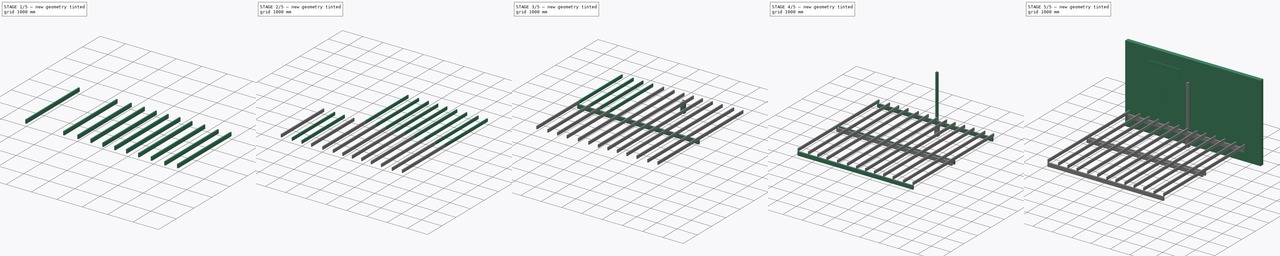
[diagram: build sequence overview — one tinted view per stage of 5, left to right]
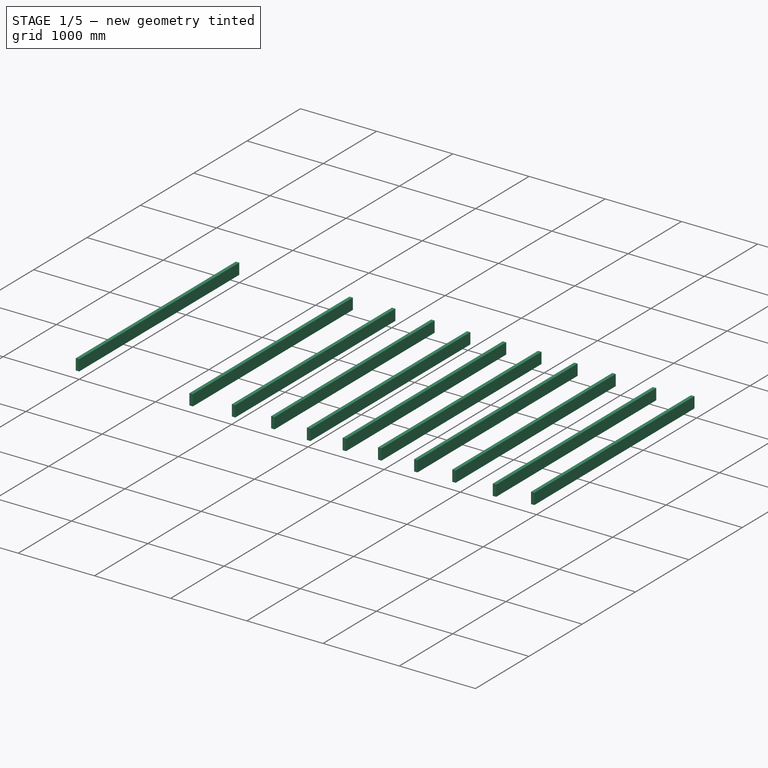
[diagram: stage 1 of 5 — iso view after this stage's code; geometry added in this stage tinted green]
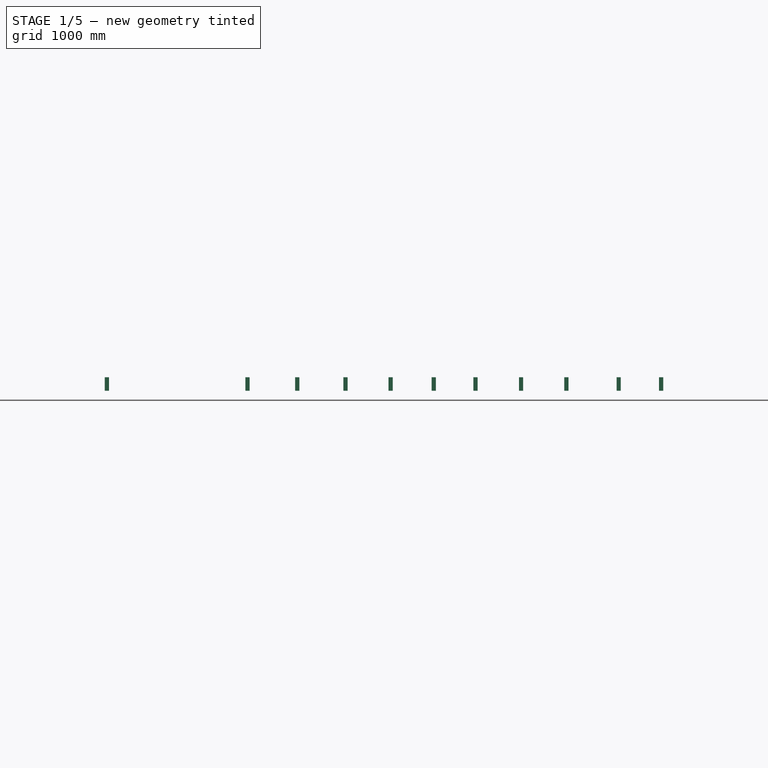
[diagram: stage 1 of 5 — front view after this stage's code; geometry added in this stage tinted green]
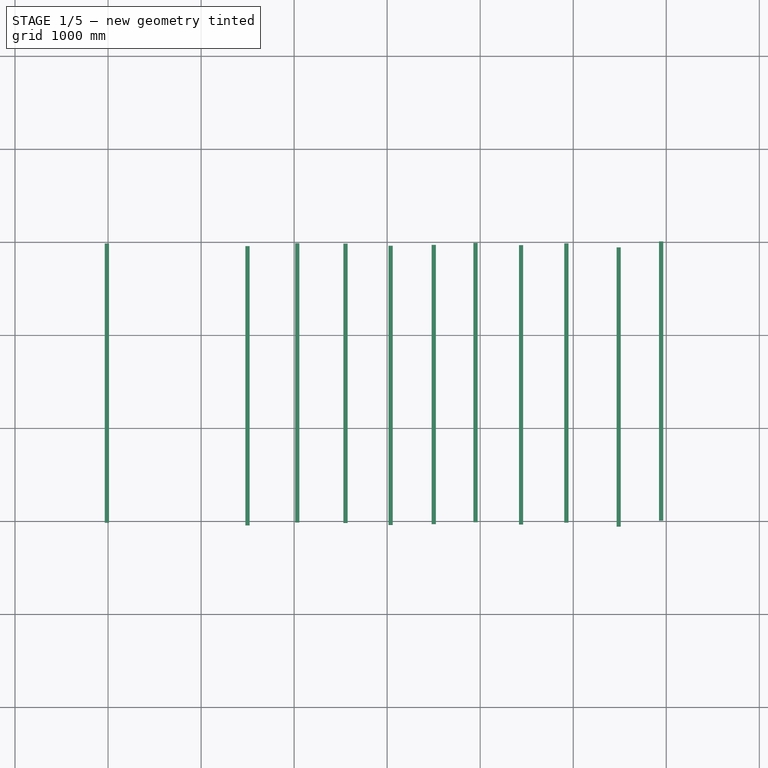
[diagram: stage 1 of 5 — top view after this stage's code; geometry added in this stage tinted green]
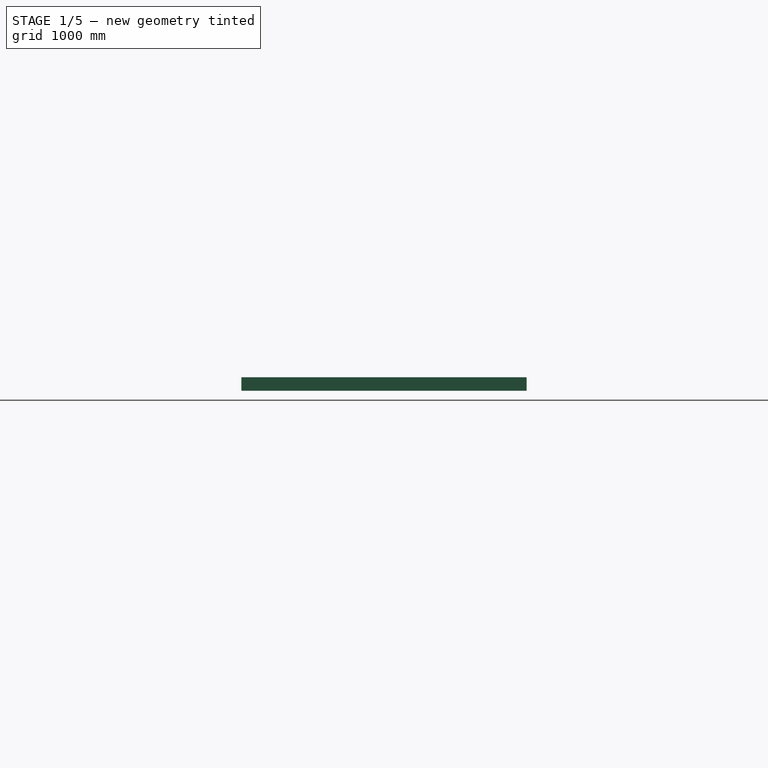
[diagram: stage 1 of 5 — right view after this stage's code; geometry added in this stage tinted green]
FCSTD DOCUMENT  (FreeCAD 0.19R24291 (Git))
Label: terrasse
License: All rights reserved
LicenseURL: http://en.wikipedia.org/wiki/All_rights_reserved
objects: Sketcher::SketchObject×62, Part::Extrusion×30, PartDesign::Pad×15, App::Part×15, PartDesign::Revolution×9, App::DocumentObjectGroup×6, Part::FeaturePython×2
note: 142 computed .brp shape members not serialized (recipe doc carries the construction recipe); baked Part::Feature solids carry a one-line shape summary decoded from their .brp

FEATURE [App::Part] Part012  label="BastaingJardin1"
  Group = -> [Sketch168,Extrude016]
  Origin = -> Origin014
FEATURE [App::Part] Part013  label="LambourdeMaison"
  Group = -> [Sketch154,Extrude014,Sketch144,Extrude002,Sketch145,Extrude003,Sketch147,Extrude004,Sketch146,Extrude005,Sketch148,Extrude006,Sketch149,Extrude007,Sketch150,Extrude008,Sketch152,Extrude009,Sketch156,Extrude010,Sketch153,Extrude011,Sketch157,Extrude012,Sketch151,Extrude013]
  Origin = -> Origin015
FEATURE [Sketcher::SketchObject] Sketch169
  FullyConstrained = false
  Placement = pos=(0,0,0) rot=(0.57735,0.57735,0.57735;2.0944rad)
  sketch-geometry (4):
    g0: LineSegment StartX=-2994.64 StartY=909.013 StartZ=0 EndX=5.36068 EndY=909.013 EndZ=0
    g1: LineSegment StartX=5.36068 StartY=909.013 StartZ=0 EndX=5.36068 EndY=764.013 EndZ=0
    g2: LineSegment StartX=5.36068 StartY=764.013 StartZ=0 EndX=-2994.64 EndY=764.013 EndZ=0
    g3: LineSegment StartX=-2994.64 StartY=764.013 StartZ=0 EndX=-2994.64 EndY=909.013 EndZ=0
  constraints (10):
    c: Coincident(g0,g1)
    c: Coincident(g1,g2)
    c: Coincident(g2,g3)
    c: Coincident(g3,g0)
    c: Horizontal(g0)
    c: Horizontal(g2)
    c: Vertical(g1)
    c: Vertical(g3)
    c: DistanceX(g2,g2) = 3000
    c: DistanceY(g1,g1) = 145
FEATURE [Part::Extrusion] Extrude021  label="Lambourde018"
  Base = -> Sketch169
  Dir = (1,-2e-16,2e-16)
  DirMode = 2
  FaceMakerClass = Part::FaceMakerBullseye
  LengthFwd = 45
  LengthRev = 0
  Placement = pos=(-3035,-3021,0) rot=(0,0,1;0rad)
  Solid = true
  Symmetric = false
FEATURE [Sketcher::SketchObject] Sketch171
  FullyConstrained = false
  Placement = pos=(0,0,0) rot=(0.57735,0.57735,0.57735;2.0944rad)
  sketch-geometry (4):
    g0: LineSegment StartX=-2994.64 StartY=909.013 StartZ=0 EndX=5.36068 EndY=909.013 EndZ=0
    g1: LineSegment StartX=5.36068 StartY=909.013 StartZ=0 EndX=5.36068 EndY=764.013 EndZ=0
    g2: LineSegment StartX=5.36068 StartY=764.013 StartZ=0 EndX=-2994.64 EndY=764.013 EndZ=0
    g3: LineSegment StartX=-2994.64 StartY=764.013 StartZ=0 EndX=-2994.64 EndY=909.013 EndZ=0
  constraints (10):
    c: Coincident(g0,g1)
    c: Coincident(g1,g2)
    c: Coincident(g2,g3)
    c: Coincident(g3,g0)
    c: Horizontal(g0)
    c: Horizontal(g2)
    c: Vertical(g1)
    c: Vertical(g3)
    c: DistanceX(g2,g2) = 3000
    c: DistanceY(g1,g1) = 145
FEATURE [Part::Extrusion] Extrude019  label="Lambourde016"
  Base = -> Sketch171
  Dir = (1,0,0)
  DirMode = 2
  FaceMakerClass = Part::FaceMakerBullseye
  LengthFwd = 45
  LengthRev = 0
  Placement = pos=(-1524,-3049,0) rot=(0,0,1;0rad)
  Solid = true
  Symmetric = false
FEATURE [Sketcher::SketchObject] Sketch172
  FullyConstrained = false
  Placement = pos=(0,0,0) rot=(0.57735,0.57735,0.57735;2.0944rad)
  sketch-geometry (4):
    g0: LineSegment StartX=-2994.64 StartY=909.013 StartZ=0 EndX=5.36068 EndY=909.013 EndZ=0
    g1: LineSegment StartX=5.36068 StartY=909.013 StartZ=0 EndX=5.36068 EndY=764.013 EndZ=0
    g2: LineSegment StartX=5.36068 StartY=764.013 StartZ=0 EndX=-2994.64 EndY=764.013 EndZ=0
    g3: LineSegment StartX=-2994.64 StartY=764.013 StartZ=0 EndX=-2994.64 EndY=909.013 EndZ=0
  constraints (10):
    c: Coincident(g0,g1)
    c: Coincident(g1,g2)
    c: Coincident(g2,g3)
    c: Coincident(g3,g0)
    c: Horizontal(g0)
    c: Horizontal(g2)
    c: Vertical(g1)
    c: Vertical(g3)
    c: DistanceX(g2,g2) = 3000
    c: DistanceY(g1,g1) = 145
FEATURE [Part::Extrusion] Extrude026  label="Lambourde023"
  Base = -> Sketch172
  Dir = (1,-2e-16,2e-16)
  DirMode = 2
  FaceMakerClass = Part::FaceMakerBullseye
  LengthFwd = 45
  LengthRev = 0
  Placement = pos=(2466,-3063,0) rot=(0,0,1;0rad)
  Solid = true
  Symmetric = false
FEATURE [Sketcher::SketchObject] Sketch173
  FullyConstrained = false
  Placement = pos=(0,0,0) rot=(0.57735,0.57735,0.57735;2.0944rad)
  sketch-geometry (4):
    g0: LineSegment StartX=-2994.64 StartY=909.013 StartZ=0 EndX=5.36068 EndY=909.013 EndZ=0
    g1: LineSegment StartX=5.36068 StartY=909.013 StartZ=0 EndX=5.36068 EndY=764.013 EndZ=0
    g2: LineSegment StartX=5.36068 StartY=764.013 StartZ=0 EndX=-2994.64 EndY=764.013 EndZ=0
    g3: LineSegment StartX=-2994.64 StartY=764.013 StartZ=0 EndX=-2994.64 EndY=909.013 EndZ=0
  constraints (10):
    c: Coincident(g0,g1)
    c: Coincident(g1,g2)
    c: Coincident(g2,g3)
    c: Coincident(g3,g0)
    c: Horizontal(g0)
    c: Horizontal(g2)
    c: Vertical(g1)
    c: Vertical(g3)
    c: DistanceX(g2,g2) = 3000
    c: DistanceY(g1,g1) = 145
FEATURE [Part::Extrusion] Extrude028  label="Lambourde025"
  Base = -> Sketch173
  Dir = (1,0,0)
  DirMode = 2
  FaceMakerClass = Part::FaceMakerBullseye
  LengthFwd = 45
  LengthRev = 0
  Placement = pos=(1417,-3039,0) rot=(0,0,1;0rad)
  Solid = true
  Symmetric = false
FEATURE [Sketcher::SketchObject] Sketch174
  FullyConstrained = false
  Placement = pos=(-160,0,0) rot=(0.57735,0.57735,0.57735;2.0944rad)
  sketch-geometry (4):
    g0: LineSegment StartX=-2994.64 StartY=909.013 StartZ=0 EndX=5.36068 EndY=909.013 EndZ=0
    g1: LineSegment StartX=5.36068 StartY=909.013 StartZ=0 EndX=5.36068 EndY=764.013 EndZ=0
    g2: LineSegment StartX=5.36068 StartY=764.013 StartZ=0 EndX=-2994.64 EndY=764.013 EndZ=0
    g3: LineSegment StartX=-2994.64 StartY=764.013 StartZ=0 EndX=-2994.64 EndY=909.013 EndZ=0
  constraints (10):
    c: Coincident(g0,g1)
    c: Coincident(g1,g2)
    c: Coincident(g2,g3)
    c: Coincident(g3,g0)
    c: Horizontal(g0)
    c: Horizontal(g2)
    c: Vertical(g1)
    c: Vertical(g3)
    c: DistanceX(g2,g2) = 3000
    c: DistanceY(g1,g1) = 145
FEATURE [Part::Extrusion] Extrude025  label="Lambourde022"
  Base = -> Sketch174
  Dir = (1,-2e-16,2e-16)
  DirMode = 2
  FaceMakerClass = Part::FaceMakerBullseye
  LengthFwd = 45
  LengthRev = 0
  Placement = pos=(638,-3036,0) rot=(0,0,1;0rad)
  Solid = true
  Symmetric = false
FEATURE [Sketcher::SketchObject] Sketch175
  FullyConstrained = false
  Placement = pos=(0,0,0) rot=(0.57735,0.57735,0.57735;2.0944rad)
  sketch-geometry (4):
    g0: LineSegment StartX=-2994.64 StartY=909.013 StartZ=0 EndX=5.36068 EndY=909.013 EndZ=0
    g1: LineSegment StartX=5.36068 StartY=909.013 StartZ=0 EndX=5.36068 EndY=764.013 EndZ=0
    g2: LineSegment StartX=5.36068 StartY=764.013 StartZ=0 EndX=-2994.64 EndY=764.013 EndZ=0
    g3: LineSegment StartX=-2994.64 StartY=764.013 StartZ=0 EndX=-2994.64 EndY=909.013 EndZ=0
  constraints (10):
    c: Coincident(g0,g1)
    c: Coincident(g1,g2)
    c: Coincident(g2,g3)
    c: Coincident(g3,g0)
    c: Horizontal(g0)
    c: Horizontal(g2)
    c: Vertical(g1)
    c: Vertical(g3)
    c: DistanceX(g2,g2) = 3000
    c: DistanceY(g1,g1) = 145
FEATURE [Part::Extrusion] Extrude029  label="Lambourde026"
  Base = -> Sketch175
  Dir = (1,0,0)
  DirMode = 2
  FaceMakerClass = Part::FaceMakerBullseye
  LengthFwd = 45
  LengthRev = 0
  Placement = pos=(2922,-2998,0) rot=(0,0,1;0rad)
  Solid = true
  Symmetric = false
FEATURE [Sketcher::SketchObject] Sketch176
  FullyConstrained = false
  Placement = pos=(0,0,0) rot=(0.57735,0.57735,0.57735;2.0944rad)
  sketch-geometry (4):
    g0: LineSegment StartX=-2994.64 StartY=909.013 StartZ=0 EndX=5.36068 EndY=909.013 EndZ=0
    g1: LineSegment StartX=5.36068 StartY=909.013 StartZ=0 EndX=5.36068 EndY=764.013 EndZ=0
    g2: LineSegment StartX=5.36068 StartY=764.013 StartZ=0 EndX=-2994.64 EndY=764.013 EndZ=0
    g3: LineSegment StartX=-2994.64 StartY=764.013 StartZ=0 EndX=-2994.64 EndY=909.013 EndZ=0
  constraints (10):
    c: Coincident(g0,g1)
    c: Coincident(g1,g2)
    c: Coincident(g2,g3)
    c: Coincident(g3,g0)
    c: Horizontal(g0)
    c: Horizontal(g2)
    c: Vertical(g1)
    c: Vertical(g3)
    c: DistanceX(g2,g2) = 3000
    c: DistanceY(g1,g1) = 145
FEATURE [Part::Extrusion] Extrude022  label="Lambourde019"
  Base = -> Sketch176
  Dir = (1,0,0)
  DirMode = 2
  FaceMakerClass = Part::FaceMakerBullseye
  LengthFwd = 45
  LengthRev = 0
  Placement = pos=(927,-3016,0) rot=(0,0,1;0rad)
  Solid = true
  Symmetric = false
FEATURE [Sketcher::SketchObject] Sketch177
  FullyConstrained = false
  Placement = pos=(0,0,0) rot=(0.57735,0.57735,0.57735;2.0944rad)
  sketch-geometry (4):
    g0: LineSegment StartX=-2994.64 StartY=909.013 StartZ=0 EndX=5.36068 EndY=909.013 EndZ=0
    g1: LineSegment StartX=5.36068 StartY=909.013 StartZ=0 EndX=5.36068 EndY=764.013 EndZ=0
    g2: LineSegment StartX=5.36068 StartY=764.013 StartZ=0 EndX=-2994.64 EndY=764.013 EndZ=0
    g3: LineSegment StartX=-2994.64 StartY=764.013 StartZ=0 EndX=-2994.64 EndY=909.013 EndZ=0
  constraints (10):
    c: Coincident(g0,g1)
    c: Coincident(g1,g2)
    c: Coincident(g2,g3)
    c: Coincident(g3,g0)
    c: Horizontal(g0)
    c: Horizontal(g2)
    c: Vertical(g1)
    c: Vertical(g3)
    c: DistanceX(g2,g2) = 3000
    c: DistanceY(g1,g1) = 145
FEATURE [Part::Extrusion] Extrude024  label="Lambourde021"
  Base = -> Sketch177
  Dir = (1,0,0)
  DirMode = 2
  FaceMakerClass = Part::FaceMakerBullseye
  LengthFwd = 45
  LengthRev = 0
  Placement = pos=(1904,-3020,0) rot=(0,0,1;0rad)
  Solid = true
  Symmetric = false
FEATURE [Sketcher::SketchObject] Sketch178
  FullyConstrained = false
  Placement = pos=(0,0,0) rot=(0.57735,0.57735,0.57735;2.0944rad)
  sketch-geometry (4):
    g0: LineSegment StartX=-2994.64 StartY=909.013 StartZ=0 EndX=5.36068 EndY=909.013 EndZ=0
    g1: LineSegment StartX=5.36068 StartY=909.013 StartZ=0 EndX=5.36068 EndY=764.013 EndZ=0
    g2: LineSegment StartX=5.36068 StartY=764.013 StartZ=0 EndX=-2994.64 EndY=764.013 EndZ=0
    g3: LineSegment StartX=-2994.64 StartY=764.013 StartZ=0 EndX=-2994.64 EndY=909.013 EndZ=0
  constraints (10):
    c: Coincident(g0,g1)
    c: Coincident(g1,g2)
    c: Coincident(g2,g3)
    c: Coincident(g3,g0)
    c: Horizontal(g0)
    c: Horizontal(g2)
    c: Vertical(g1)
    c: Vertical(g3)
    c: DistanceX(g2,g2) = 3000
    c: DistanceY(g1,g1) = 145
FEATURE [Part::Extrusion] Extrude023  label="Lambourde020"
  Base = -> Sketch178
  Dir = (1,0,0)
  DirMode = 2
  FaceMakerClass = Part::FaceMakerBullseye
  LengthFwd = 45
  LengthRev = 0
  Placement = pos=(-470,-3023,0) rot=(0,0,1;0rad)
  Solid = true
  Symmetric = false
FEATURE [Sketcher::SketchObject] Sketch179
  FullyConstrained = false
  Placement = pos=(0,0,0) rot=(0.57735,0.57735,0.57735;2.0944rad)
  sketch-geometry (4):
    g0: LineSegment StartX=-2994.64 StartY=909.013 StartZ=0 EndX=5.36068 EndY=909.013 EndZ=0
    g1: LineSegment StartX=5.36068 StartY=909.013 StartZ=0 EndX=5.36068 EndY=764.013 EndZ=0
    g2: LineSegment StartX=5.36068 StartY=764.013 StartZ=0 EndX=-2994.64 EndY=764.013 EndZ=0
    g3: LineSegment StartX=-2994.64 StartY=764.013 StartZ=0 EndX=-2994.64 EndY=909.013 EndZ=0
  constraints (10):
    c: Coincident(g0,g1)
    c: Coincident(g1,g2)
    c: Coincident(g2,g3)
    c: Coincident(g3,g0)
    c: Horizontal(g0)
    c: Horizontal(g2)
    c: Vertical(g1)
    c: Vertical(g3)
    c: DistanceX(g2,g2) = 3000
    c: DistanceY(g1,g1) = 145
FEATURE [Part::Extrusion] Extrude027  label="Lambourde024"
  Base = -> Sketch179
  Dir = (1,0,0)
  DirMode = 2
  FaceMakerClass = Part::FaceMakerBullseye
  LengthFwd = 45
  LengthRev = 0
  Placement = pos=(15,-3045,0) rot=(0,0,1;0rad)
  Solid = true
  Symmetric = false
FEATURE [Sketcher::SketchObject] Sketch181
  FullyConstrained = false
  Placement = pos=(0,0,0) rot=(0.57735,0.57735,0.57735;2.0944rad)
  sketch-geometry (4):
    g0: LineSegment StartX=-2994.64 StartY=909.013 StartZ=0 EndX=5.36068 EndY=909.013 EndZ=0
    g1: LineSegment StartX=5.36068 StartY=909.013 StartZ=0 EndX=5.36068 EndY=764.013 EndZ=0
    g2: LineSegment StartX=5.36068 StartY=764.013 StartZ=0 EndX=-2994.64 EndY=764.013 EndZ=0
    g3: LineSegment StartX=-2994.64 StartY=764.013 StartZ=0 EndX=-2994.64 EndY=909.013 EndZ=0
  constraints (10):
    c: Coincident(g0,g1)
    c: Coincident(g1,g2)
    c: Coincident(g2,g3)
    c: Coincident(g3,g0)
    c: Horizontal(g0)
    c: Horizontal(g2)
    c: Vertical(g1)
    c: Vertical(g3)
    c: DistanceX(g2,g2) = 3000
    c: DistanceY(g1,g1) = 145
FEATURE [Part::Extrusion] Extrude020  label="Lambourde017"
  Base = -> Sketch181
  Dir = (1,0,0)
  DirMode = 2
  FaceMakerClass = Part::FaceMakerBullseye
  LengthFwd = 45
  LengthRev = 0
  Placement = pos=(-989,-3018,0) rot=(0,0,1;0rad)
  Solid = true
  Symmetric = false
FEATURE [App::Part] Part014  label="LambourdeJardin"
  Group = -> [Sketch175,Extrude029,Sketch169,Extrude021,Sketch170,Extrude017,Sketch180,Extrude018,Sketch171,Extrude019,Sketch181,Extrude020,Sketch178,Extrude023,Sketch179,Extrude027,Sketch174,Extrude025,Sketch176,Extrude022,Sketch173,Extrude028,Sketch177,Extrude024,Sketch172,Extrude026]
  Origin = -> Origin016
FEATURE [App::DocumentObjectGroup] Group004  label="Ossature"
  Group = -> [Part006,Part007,Sketch155,Part008,Part013,Part014,Part012]
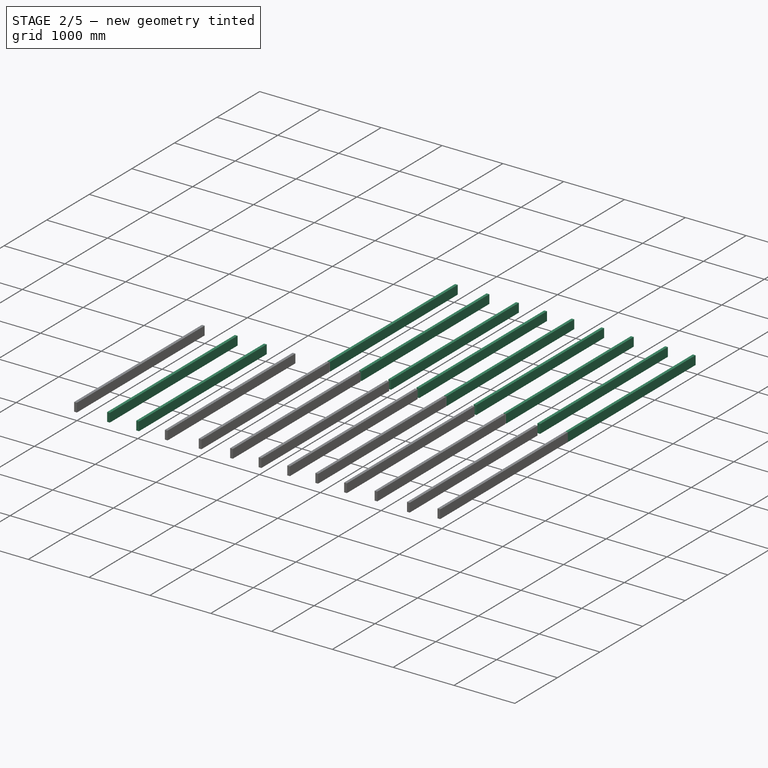
[diagram: stage 2 of 5 — iso view after this stage's code; geometry added in this stage tinted green]
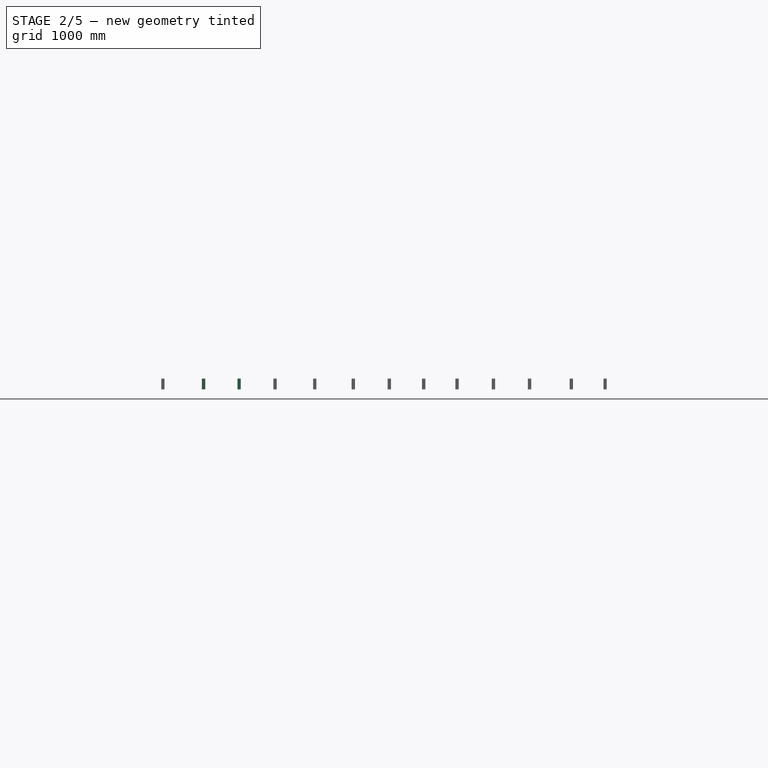
[diagram: stage 2 of 5 — front view after this stage's code; geometry added in this stage tinted green]
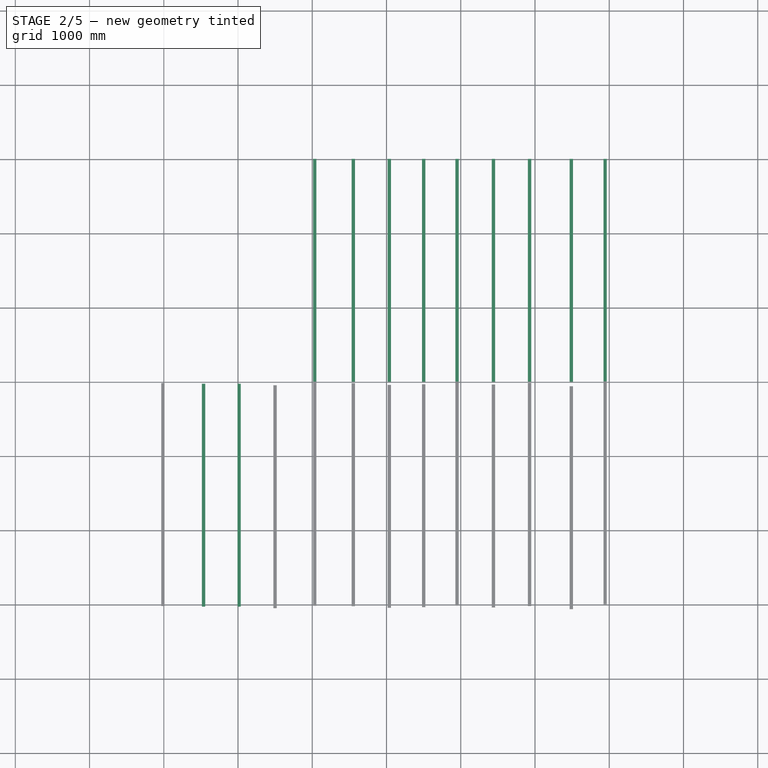
[diagram: stage 2 of 5 — top view after this stage's code; geometry added in this stage tinted green]
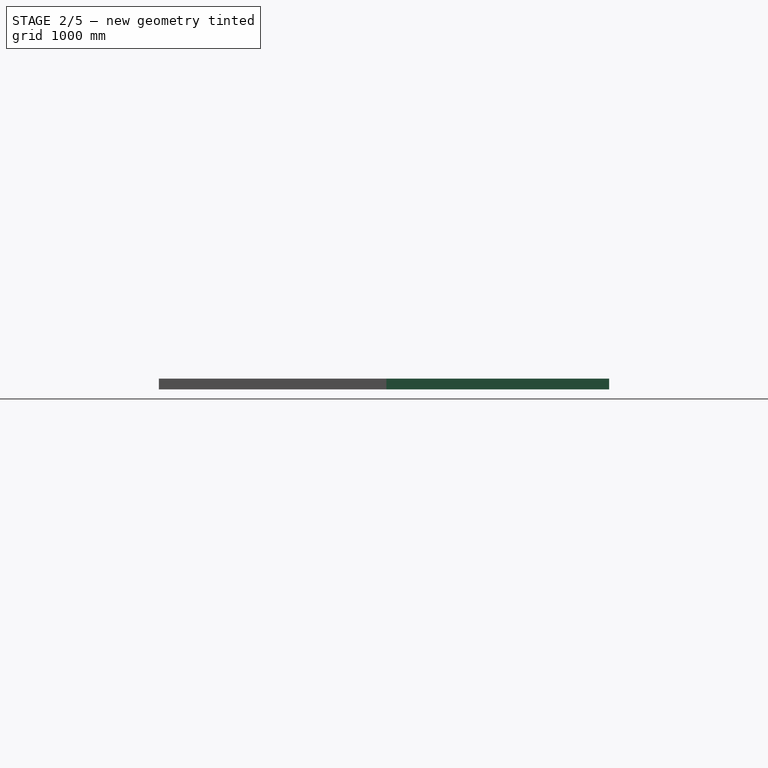
[diagram: stage 2 of 5 — right view after this stage's code; geometry added in this stage tinted green]
FEATURE [Sketcher::SketchObject] Sketch148
  FullyConstrained = false
  Placement = pos=(0,0,0) rot=(0.57735,0.57735,0.57735;2.0944rad)
  sketch-geometry (4):
    g0: LineSegment StartX=-2994.64 StartY=909.013 StartZ=0 EndX=5.36068 EndY=909.013 EndZ=0
    g1: LineSegment StartX=5.36068 StartY=909.013 StartZ=0 EndX=5.36068 EndY=764.013 EndZ=0
    g2: LineSegment StartX=5.36068 StartY=764.013 StartZ=0 EndX=-2994.64 EndY=764.013 EndZ=0
    g3: LineSegment StartX=-2994.64 StartY=764.013 StartZ=0 EndX=-2994.64 EndY=909.013 EndZ=0
  constraints (10):
    c: Coincident(g0,g1)
    c: Coincident(g1,g2)
    c: Coincident(g2,g3)
    c: Coincident(g3,g0)
    c: Horizontal(g0)
    c: Horizontal(g2)
    c: Vertical(g1)
    c: Vertical(g3)
    c: DistanceX(g2,g2) = 3000
    c: DistanceY(g1,g1) = 145
FEATURE [Part::Extrusion] Extrude006  label="Lambourde005"
  Base = -> Sketch148
  Dir = (1,0,0)
  DirMode = 2
  FaceMakerClass = Part::FaceMakerBullseye
  LengthFwd = 45
  LengthRev = 0
  Placement = pos=(-989,0,0) rot=(0,0,1;0rad)
  Solid = true
  Symmetric = false
FEATURE [Sketcher::SketchObject] Sketch149
  FullyConstrained = false
  Placement = pos=(0,0,0) rot=(0.57735,0.57735,0.57735;2.0944rad)
  sketch-geometry (4):
    g0: LineSegment StartX=-2994.64 StartY=909.013 StartZ=0 EndX=5.36068 EndY=909.013 EndZ=0
    g1: LineSegment StartX=5.36068 StartY=909.013 StartZ=0 EndX=5.36068 EndY=764.013 EndZ=0
    g2: LineSegment StartX=5.36068 StartY=764.013 StartZ=0 EndX=-2994.64 EndY=764.013 EndZ=0
    g3: LineSegment StartX=-2994.64 StartY=764.013 StartZ=0 EndX=-2994.64 EndY=909.013 EndZ=0
  constraints (10):
    c: Coincident(g0,g1)
    c: Coincident(g1,g2)
    c: Coincident(g2,g3)
    c: Coincident(g3,g0)
    c: Horizontal(g0)
    c: Horizontal(g2)
    c: Vertical(g1)
    c: Vertical(g3)
    c: DistanceX(g2,g2) = 3000
    c: DistanceY(g1,g1) = 145
FEATURE [Part::Extrusion] Extrude007  label="Lambourde006"
  Base = -> Sketch149
  Dir = (1,0,0)
  DirMode = 2
  FaceMakerClass = Part::FaceMakerBullseye
  LengthFwd = 45
  LengthRev = 0
  Placement = pos=(-470,0,0) rot=(0,0,1;0rad)
  Solid = true
  Symmetric = false
FEATURE [Sketcher::SketchObject] Sketch150
  FullyConstrained = false
  Placement = pos=(0,0,0) rot=(0.57735,0.57735,0.57735;2.0944rad)
  sketch-geometry (4):
    g0: LineSegment StartX=-2994.64 StartY=909.013 StartZ=0 EndX=5.36068 EndY=909.013 EndZ=0
    g1: LineSegment StartX=5.36068 StartY=909.013 StartZ=0 EndX=5.36068 EndY=764.013 EndZ=0
    g2: LineSegment StartX=5.36068 StartY=764.013 StartZ=0 EndX=-2994.64 EndY=764.013 EndZ=0
    g3: LineSegment StartX=-2994.64 StartY=764.013 StartZ=0 EndX=-2994.64 EndY=909.013 EndZ=0
  constraints (10):
    c: Coincident(g0,g1)
    c: Coincident(g1,g2)
    c: Coincident(g2,g3)
    c: Coincident(g3,g0)
    c: Horizontal(g0)
    c: Horizontal(g2)
    c: Vertical(g1)
    c: Vertical(g3)
    c: DistanceX(g2,g2) = 3000
    c: DistanceY(g1,g1) = 145
FEATURE [Part::Extrusion] Extrude008  label="Lambourde007"
  Base = -> Sketch150
  Dir = (1,0,0)
  DirMode = 2
  FaceMakerClass = Part::FaceMakerBullseye
  LengthFwd = 45
  LengthRev = 0
  Placement = pos=(15,0,0) rot=(0,0,1;0rad)
  Solid = true
  Symmetric = false
FEATURE [Sketcher::SketchObject] Sketch151
  FullyConstrained = false
  Placement = pos=(0,0,0) rot=(0.57735,0.57735,0.57735;2.0944rad)
  sketch-geometry (4):
    g0: LineSegment StartX=-2994.64 StartY=909.013 StartZ=0 EndX=5.36068 EndY=909.013 EndZ=0
    g1: LineSegment StartX=5.36068 StartY=909.013 StartZ=0 EndX=5.36068 EndY=764.013 EndZ=0
    g2: LineSegment StartX=5.36068 StartY=764.013 StartZ=0 EndX=-2994.64 EndY=764.013 EndZ=0
    g3: LineSegment StartX=-2994.64 StartY=764.013 StartZ=0 EndX=-2994.64 EndY=909.013 EndZ=0
  constraints (10):
    c: Coincident(g0,g1)
    c: Coincident(g1,g2)
    c: Coincident(g2,g3)
    c: Coincident(g3,g0)
    c: Horizontal(g0)
    c: Horizontal(g2)
    c: Vertical(g1)
    c: Vertical(g3)
    c: DistanceX(g2,g2) = 3000
    c: DistanceY(g1,g1) = 145
FEATURE [Part::Extrusion] Extrude013  label="Lambourde012"
  Base = -> Sketch151
  Dir = (1,-2e-16,2e-16)
  DirMode = 2
  FaceMakerClass = Part::FaceMakerBullseye
  LengthFwd = 45
  LengthRev = 0
  Placement = pos=(2466,0,0) rot=(0,0,1;0rad)
  Solid = true
  Symmetric = false
FEATURE [Sketcher::SketchObject] Sketch152
  FullyConstrained = false
  Placement = pos=(-160,0,0) rot=(0.57735,0.57735,0.57735;2.0944rad)
  sketch-geometry (4):
    g0: LineSegment StartX=-2994.64 StartY=909.013 StartZ=0 EndX=5.36068 EndY=909.013 EndZ=0
    g1: LineSegment StartX=5.36068 StartY=909.013 StartZ=0 EndX=5.36068 EndY=764.013 EndZ=0
    g2: LineSegment StartX=5.36068 StartY=764.013 StartZ=0 EndX=-2994.64 EndY=764.013 EndZ=0
    g3: LineSegment StartX=-2994.64 StartY=764.013 StartZ=0 EndX=-2994.64 EndY=909.013 EndZ=0
  constraints (10):
    c: Coincident(g0,g1)
    c: Coincident(g1,g2)
    c: Coincident(g2,g3)
    c: Coincident(g3,g0)
    c: Horizontal(g0)
    c: Horizontal(g2)
    c: Vertical(g1)
    c: Vertical(g3)
    c: DistanceX(g2,g2) = 3000
    c: DistanceY(g1,g1) = 145
FEATURE [Part::Extrusion] Extrude009  label="Lambourde008"
  Base = -> Sketch152
  Dir = (1,-2e-16,2e-16)
  DirMode = 2
  FaceMakerClass = Part::FaceMakerBullseye
  LengthFwd = 45
  LengthRev = 0
  Placement = pos=(638,0,0) rot=(0,0,1;0rad)
  Solid = true
  Symmetric = false
FEATURE [Sketcher::SketchObject] Sketch153
  FullyConstrained = false
  Placement = pos=(0,0,0) rot=(0.57735,0.57735,0.57735;2.0944rad)
  sketch-geometry (4):
    g0: LineSegment StartX=-2994.64 StartY=909.013 StartZ=0 EndX=5.36068 EndY=909.013 EndZ=0
    g1: LineSegment StartX=5.36068 StartY=909.013 StartZ=0 EndX=5.36068 EndY=764.013 EndZ=0
    g2: LineSegment StartX=5.36068 StartY=764.013 StartZ=0 EndX=-2994.64 EndY=764.013 EndZ=0
    g3: LineSegment StartX=-2994.64 StartY=764.013 StartZ=0 EndX=-2994.64 EndY=909.013 EndZ=0
  constraints (10):
    c: Coincident(g0,g1)
    c: Coincident(g1,g2)
    c: Coincident(g2,g3)
    c: Coincident(g3,g0)
    c: Horizontal(g0)
    c: Horizontal(g2)
    c: Vertical(g1)
    c: Vertical(g3)
    c: DistanceX(g2,g2) = 3000
    c: DistanceY(g1,g1) = 145
FEATURE [Part::Extrusion] Extrude011  label="Lambourde010"
  Base = -> Sketch153
  Dir = (1,0,0)
  DirMode = 2
  FaceMakerClass = Part::FaceMakerBullseye
  LengthFwd = 45
  LengthRev = 0
  Placement = pos=(1417,0,0) rot=(0,0,1;0rad)
  Solid = true
  Symmetric = false
FEATURE [Sketcher::SketchObject] Sketch154
  FullyConstrained = false
  Placement = pos=(0,0,0) rot=(0.57735,0.57735,0.57735;2.0944rad)
  sketch-geometry (4):
    g0: LineSegment StartX=-2994.64 StartY=909.013 StartZ=0 EndX=5.36068 EndY=909.013 EndZ=0
    g1: LineSegment StartX=5.36068 StartY=909.013 StartZ=0 EndX=5.36068 EndY=764.013 EndZ=0
    g2: LineSegment StartX=5.36068 StartY=764.013 StartZ=0 EndX=-2994.64 EndY=764.013 EndZ=0
    g3: LineSegment StartX=-2994.64 StartY=764.013 StartZ=0 EndX=-2994.64 EndY=909.013 EndZ=0
  constraints (10):
    c: Coincident(g0,g1)
    c: Coincident(g1,g2)
    c: Coincident(g2,g3)
    c: Coincident(g3,g0)
    c: Horizontal(g0)
    c: Horizontal(g2)
    c: Vertical(g1)
    c: Vertical(g3)
    c: DistanceX(g2,g2) = 3000
    c: DistanceY(g1,g1) = 145
FEATURE [Part::Extrusion] Extrude014  label="Lambourde013"
  Base = -> Sketch154
  Dir = (1,0,0)
  DirMode = 2
  FaceMakerClass = Part::FaceMakerBullseye
  LengthFwd = 45
  LengthRev = 0
  Placement = pos=(2922,0,0) rot=(0,0,1;0rad)
  Solid = true
  Symmetric = false
FEATURE [Sketcher::SketchObject] Sketch155
  FullyConstrained = false
  Placement = pos=(0,0,0) rot=(0.57735,0.57735,0.57735;2.0944rad)
  sketch-geometry (4):
    g0: LineSegment StartX=-2994.64 StartY=909.013 StartZ=0 EndX=5.36068 EndY=909.013 EndZ=0
    g1: LineSegment StartX=5.36068 StartY=909.013 StartZ=0 EndX=5.36068 EndY=764.013 EndZ=0
    g2: LineSegment StartX=5.36068 StartY=764.013 StartZ=0 EndX=-2994.64 EndY=764.013 EndZ=0
    g3: LineSegment StartX=-2994.64 StartY=764.013 StartZ=0 EndX=-2994.64 EndY=909.013 EndZ=0
  constraints (10):
    c: Coincident(g0,g1)
    c: Coincident(g1,g2)
    c: Coincident(g2,g3)
    c: Coincident(g3,g0)
    c: Horizontal(g0)
    c: Horizontal(g2)
    c: Vertical(g1)
    c: Vertical(g3)
    c: DistanceX(g2,g2) = 3000
    c: DistanceY(g1,g1) = 145
FEATURE [Sketcher::SketchObject] Sketch156
  FullyConstrained = false
  Placement = pos=(0,0,0) rot=(0.57735,0.57735,0.57735;2.0944rad)
  sketch-geometry (4):
    g0: LineSegment StartX=-2994.64 StartY=909.013 StartZ=0 EndX=5.36068 EndY=909.013 EndZ=0
    g1: LineSegment StartX=5.36068 StartY=909.013 StartZ=0 EndX=5.36068 EndY=764.013 EndZ=0
    g2: LineSegment StartX=5.36068 StartY=764.013 StartZ=0 EndX=-2994.64 EndY=764.013 EndZ=0
    g3: LineSegment StartX=-2994.64 StartY=764.013 StartZ=0 EndX=-2994.64 EndY=909.013 EndZ=0
  constraints (10):
    c: Coincident(g0,g1)
    c: Coincident(g1,g2)
    c: Coincident(g2,g3)
    c: Coincident(g3,g0)
    c: Horizontal(g0)
    c: Horizontal(g2)
    c: Vertical(g1)
    c: Vertical(g3)
    c: DistanceX(g2,g2) = 3000
    c: DistanceY(g1,g1) = 145
FEATURE [Part::Extrusion] Extrude010  label="Lambourde009"
  Base = -> Sketch156
  Dir = (1,0,0)
  DirMode = 2
  FaceMakerClass = Part::FaceMakerBullseye
  LengthFwd = 45
  LengthRev = 0
  Placement = pos=(927,0,0) rot=(0,0,1;0rad)
  Solid = true
  Symmetric = false
FEATURE [Sketcher::SketchObject] Sketch157
  FullyConstrained = false
  Placement = pos=(0,0,0) rot=(0.57735,0.57735,0.57735;2.0944rad)
  sketch-geometry (4):
    g0: LineSegment StartX=-2994.64 StartY=909.013 StartZ=0 EndX=5.36068 EndY=909.013 EndZ=0
    g1: LineSegment StartX=5.36068 StartY=909.013 StartZ=0 EndX=5.36068 EndY=764.013 EndZ=0
    g2: LineSegment StartX=5.36068 StartY=764.013 StartZ=0 EndX=-2994.64 EndY=764.013 EndZ=0
    g3: LineSegment StartX=-2994.64 StartY=764.013 StartZ=0 EndX=-2994.64 EndY=909.013 EndZ=0
  constraints (10):
    c: Coincident(g0,g1)
    c: Coincident(g1,g2)
    c: Coincident(g2,g3)
    c: Coincident(g3,g0)
    c: Horizontal(g0)
    c: Horizontal(g2)
    c: Vertical(g1)
    c: Vertical(g3)
    c: DistanceX(g2,g2) = 3000
    c: DistanceY(g1,g1) = 145
FEATURE [Part::Extrusion] Extrude012  label="Lambourde011"
  Base = -> Sketch157
  Dir = (1,0,0)
  DirMode = 2
  FaceMakerClass = Part::FaceMakerBullseye
  LengthFwd = 45
  LengthRev = 0
  Placement = pos=(1904,0,0) rot=(0,0,1;0rad)
  Solid = true
  Symmetric = false
FEATURE [Sketcher::SketchObject] Sketch170
  FullyConstrained = false
  Placement = pos=(-160,0,0) rot=(0.57735,0.57735,0.57735;2.0944rad)
  sketch-geometry (4):
    g0: LineSegment StartX=-2994.64 StartY=909.013 StartZ=0 EndX=5.36068 EndY=909.013 EndZ=0
    g1: LineSegment StartX=5.36068 StartY=909.013 StartZ=0 EndX=5.36068 EndY=764.013 EndZ=0
    g2: LineSegment StartX=5.36068 StartY=764.013 StartZ=0 EndX=-2994.64 EndY=764.013 EndZ=0
    g3: LineSegment StartX=-2994.64 StartY=764.013 StartZ=0 EndX=-2994.64 EndY=909.013 EndZ=0
  constraints (10):
    c: Coincident(g0,g1)
    c: Coincident(g1,g2)
    c: Coincident(g2,g3)
    c: Coincident(g3,g0)
    c: Horizontal(g0)
    c: Horizontal(g2)
    c: Vertical(g1)
    c: Vertical(g3)
    c: DistanceX(g2,g2) = 3000
    c: DistanceY(g1,g1) = 145
FEATURE [Part::Extrusion] Extrude017  label="Lambourde014"
  Base = -> Sketch170
  Dir = (1,-2e-16,2e-16)
  DirMode = 2
  FaceMakerClass = Part::FaceMakerBullseye
  LengthFwd = 45
  LengthRev = 0
  Placement = pos=(-2327,-3030,0) rot=(0,0,1;0rad)
  Solid = true
  Symmetric = false
FEATURE [Sketcher::SketchObject] Sketch180
  FullyConstrained = false
  Placement = pos=(0,0,0) rot=(0.57735,0.57735,0.57735;2.0944rad)
  sketch-geometry (4):
    g0: LineSegment StartX=-2994.64 StartY=909.013 StartZ=0 EndX=5.36068 EndY=909.013 EndZ=0
    g1: LineSegment StartX=5.36068 StartY=909.013 StartZ=0 EndX=5.36068 EndY=764.013 EndZ=0
    g2: LineSegment StartX=5.36068 StartY=764.013 StartZ=0 EndX=-2994.64 EndY=764.013 EndZ=0
    g3: LineSegment StartX=-2994.64 StartY=764.013 StartZ=0 EndX=-2994.64 EndY=909.013 EndZ=0
  constraints (10):
    c: Coincident(g0,g1)
    c: Coincident(g1,g2)
    c: Coincident(g2,g3)
    c: Coincident(g3,g0)
    c: Horizontal(g0)
    c: Horizontal(g2)
    c: Vertical(g1)
    c: Vertical(g3)
    c: DistanceX(g2,g2) = 3000
    c: DistanceY(g1,g1) = 145
FEATURE [Part::Extrusion] Extrude018  label="Lambourde015"
  Base = -> Sketch180
  Dir = (1,0,0)
  DirMode = 2
  FaceMakerClass = Part::FaceMakerBullseye
  LengthFwd = 45
  LengthRev = 0
  Placement = pos=(-2008,-3030,0) rot=(0,0,1;0rad)
  Solid = true
  Symmetric = false
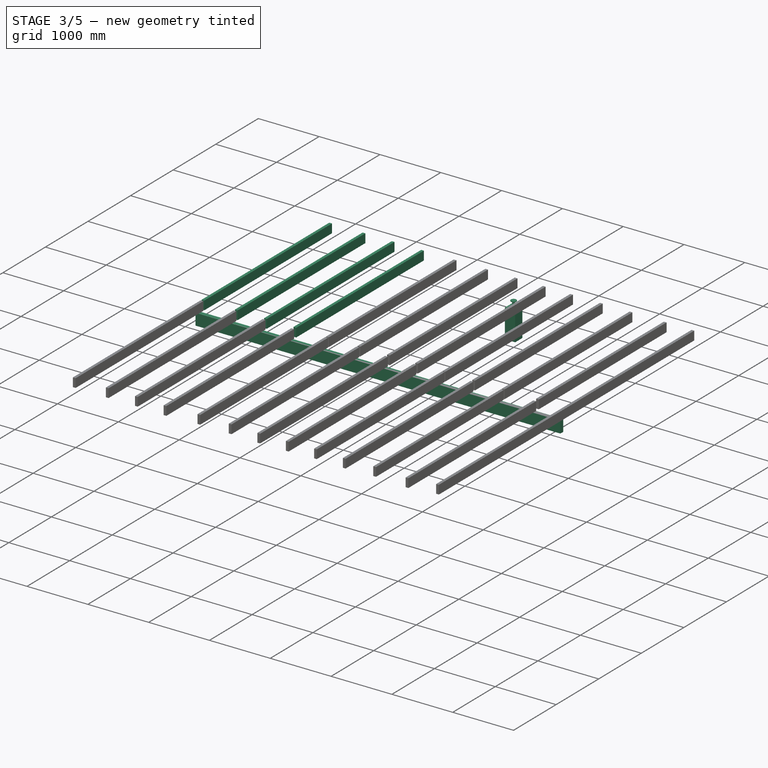
[diagram: stage 3 of 5 — iso view after this stage's code; geometry added in this stage tinted green]
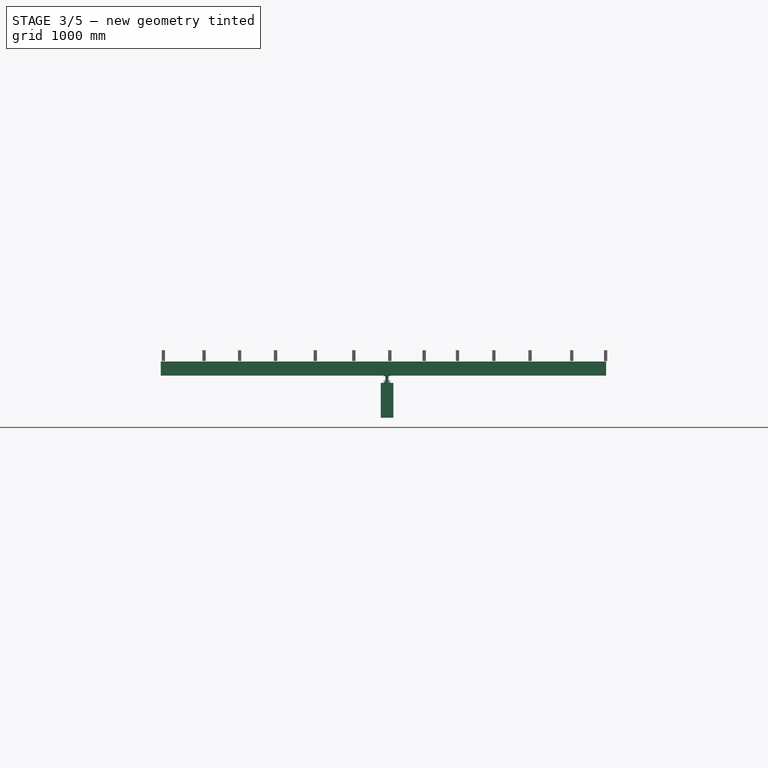
[diagram: stage 3 of 5 — front view after this stage's code; geometry added in this stage tinted green]
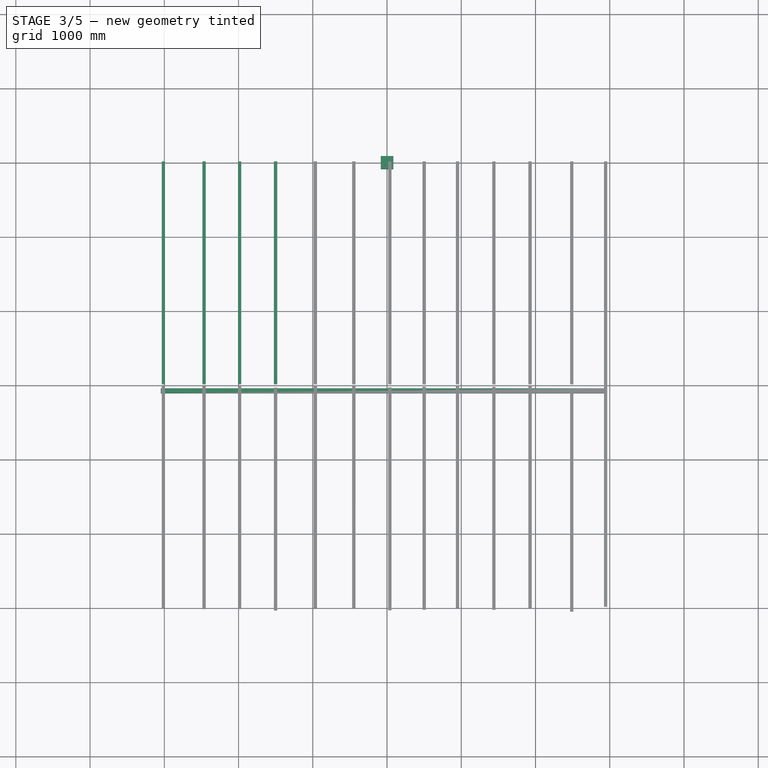
[diagram: stage 3 of 5 — top view after this stage's code; geometry added in this stage tinted green]
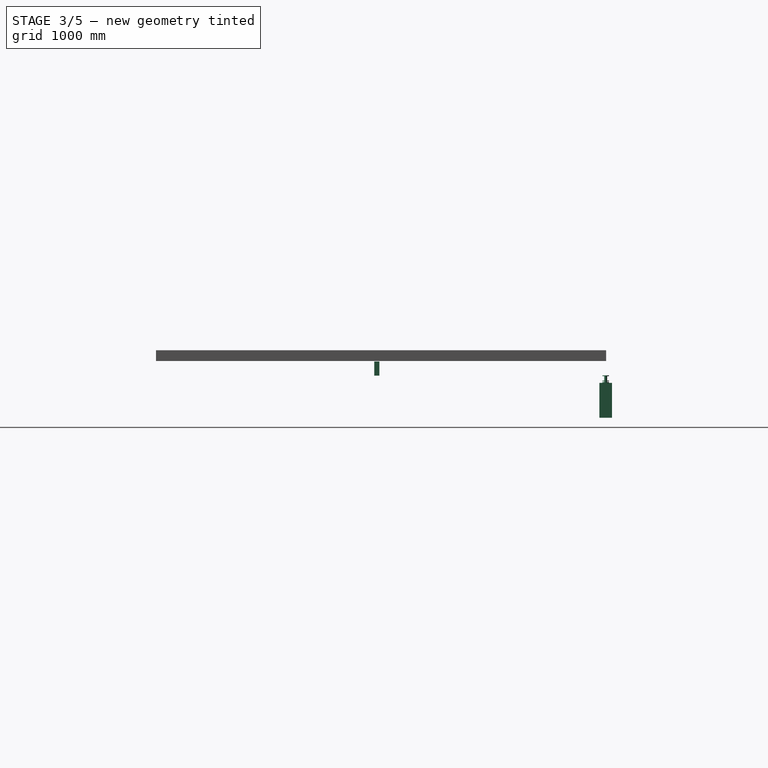
[diagram: stage 3 of 5 — right view after this stage's code; geometry added in this stage tinted green]
FEATURE [PartDesign::Revolution] Revolution002  label="Support002"
  Angle = 360
  Axis = (4.31e-14,-5.39e-14,-194.066)
  Base = (-1.168e-13,1.46e-13,526.027)
  Placement = pos=(0,0,0) rot=(0.57735,0.57735,0.57735;2.0944rad)
  Profile = -> Sketch008
  ReferenceAxis = -> Sketch008 [Axis0]
  Reversed = true
FEATURE [App::Part] Part007  label="BastaingMaison2"
  Group = -> [Sketch143,Extrude001]
  Origin = -> Origin009
FEATURE [Sketcher::SketchObject] Sketch144
  FullyConstrained = false
  Placement = pos=(0,0,0) rot=(0.57735,0.57735,0.57735;2.0944rad)
  sketch-geometry (4):
    g0: LineSegment StartX=-2994.64 StartY=909.013 StartZ=0 EndX=5.36068 EndY=909.013 EndZ=0
    g1: LineSegment StartX=5.36068 StartY=909.013 StartZ=0 EndX=5.36068 EndY=764.013 EndZ=0
    g2: LineSegment StartX=5.36068 StartY=764.013 StartZ=0 EndX=-2994.64 EndY=764.013 EndZ=0
    g3: LineSegment StartX=-2994.64 StartY=764.013 StartZ=0 EndX=-2994.64 EndY=909.013 EndZ=0
  constraints (10):
    c: Coincident(g0,g1)
    c: Coincident(g1,g2)
    c: Coincident(g2,g3)
    c: Coincident(g3,g0)
    c: Horizontal(g0)
    c: Horizontal(g2)
    c: Vertical(g1)
    c: Vertical(g3)
    c: DistanceX(g2,g2) = 3000
    c: DistanceY(g1,g1) = 145
FEATURE [Part::Extrusion] Extrude002  label="Lambourde1"
  Base = -> Sketch144
  Dir = (1,-2e-16,2e-16)
  DirMode = 2
  FaceMakerClass = Part::FaceMakerBullseye
  LengthFwd = 45
  LengthRev = 0
  Placement = pos=(-3035,0,0) rot=(0,0,1;0rad)
  Solid = true
  Symmetric = false
FEATURE [Sketcher::SketchObject] Sketch145
  FullyConstrained = false
  Placement = pos=(-160,0,0) rot=(0.57735,0.57735,0.57735;2.0944rad)
  sketch-geometry (4):
    g0: LineSegment StartX=-2994.64 StartY=909.013 StartZ=0 EndX=5.36068 EndY=909.013 EndZ=0
    g1: LineSegment StartX=5.36068 StartY=909.013 StartZ=0 EndX=5.36068 EndY=764.013 EndZ=0
    g2: LineSegment StartX=5.36068 StartY=764.013 StartZ=0 EndX=-2994.64 EndY=764.013 EndZ=0
    g3: LineSegment StartX=-2994.64 StartY=764.013 StartZ=0 EndX=-2994.64 EndY=909.013 EndZ=0
  constraints (10):
    c: Coincident(g0,g1)
    c: Coincident(g1,g2)
    c: Coincident(g2,g3)
    c: Coincident(g3,g0)
    c: Horizontal(g0)
    c: Horizontal(g2)
    c: Vertical(g1)
    c: Vertical(g3)
    c: DistanceX(g2,g2) = 3000
    c: DistanceY(g1,g1) = 145
FEATURE [Part::Extrusion] Extrude003  label="Lambourde002"
  Base = -> Sketch145
  Dir = (1,-2e-16,2e-16)
  DirMode = 2
  FaceMakerClass = Part::FaceMakerBullseye
  LengthFwd = 45
  LengthRev = 0
  Placement = pos=(-2327,0,0) rot=(0,0,1;0rad)
  Solid = true
  Symmetric = false
FEATURE [Sketcher::SketchObject] Sketch146
  FullyConstrained = false
  Placement = pos=(0,0,0) rot=(0.57735,0.57735,0.57735;2.0944rad)
  sketch-geometry (4):
    g0: LineSegment StartX=-2994.64 StartY=909.013 StartZ=0 EndX=5.36068 EndY=909.013 EndZ=0
    g1: LineSegment StartX=5.36068 StartY=909.013 StartZ=0 EndX=5.36068 EndY=764.013 EndZ=0
    g2: LineSegment StartX=5.36068 StartY=764.013 StartZ=0 EndX=-2994.64 EndY=764.013 EndZ=0
    g3: LineSegment StartX=-2994.64 StartY=764.013 StartZ=0 EndX=-2994.64 EndY=909.013 EndZ=0
  constraints (10):
    c: Coincident(g0,g1)
    c: Coincident(g1,g2)
    c: Coincident(g2,g3)
    c: Coincident(g3,g0)
    c: Horizontal(g0)
    c: Horizontal(g2)
    c: Vertical(g1)
    c: Vertical(g3)
    c: DistanceX(g2,g2) = 3000
    c: DistanceY(g1,g1) = 145
FEATURE [Part::Extrusion] Extrude005  label="Lambourde004"
  Base = -> Sketch146
  Dir = (1,0,0)
  DirMode = 2
  FaceMakerClass = Part::FaceMakerBullseye
  LengthFwd = 45
  LengthRev = 0
  Placement = pos=(-1524,0,0) rot=(0,0,1;0rad)
  Solid = true
  Symmetric = false
FEATURE [Sketcher::SketchObject] Sketch147
  FullyConstrained = false
  Placement = pos=(0,0,0) rot=(0.57735,0.57735,0.57735;2.0944rad)
  sketch-geometry (4):
    g0: LineSegment StartX=-2994.64 StartY=909.013 StartZ=0 EndX=5.36068 EndY=909.013 EndZ=0
    g1: LineSegment StartX=5.36068 StartY=909.013 StartZ=0 EndX=5.36068 EndY=764.013 EndZ=0
    g2: LineSegment StartX=5.36068 StartY=764.013 StartZ=0 EndX=-2994.64 EndY=764.013 EndZ=0
    g3: LineSegment StartX=-2994.64 StartY=764.013 StartZ=0 EndX=-2994.64 EndY=909.013 EndZ=0
  constraints (10):
    c: Coincident(g0,g1)
    c: Coincident(g1,g2)
    c: Coincident(g2,g3)
    c: Coincident(g3,g0)
    c: Horizontal(g0)
    c: Horizontal(g2)
    c: Vertical(g1)
    c: Vertical(g3)
    c: DistanceX(g2,g2) = 3000
    c: DistanceY(g1,g1) = 145
FEATURE [Part::Extrusion] Extrude004  label="Lambourde003"
  Base = -> Sketch147
  Dir = (1,0,0)
  DirMode = 2
  FaceMakerClass = Part::FaceMakerBullseye
  LengthFwd = 45
  LengthRev = 0
  Placement = pos=(-2008,0,0) rot=(0,0,1;0rad)
  Solid = true
  Symmetric = false
FEATURE [App::Part] Part008  label="BastaingJardin2"
  Group = -> [Sketch158,Extrude015]
  Origin = -> Origin010
FEATURE [Sketcher::SketchObject] Sketch159
  AttachmentOffset = pos=(0,0,500) rot=(0,0,1;0rad)
  FullyConstrained = true
  MapMode = 5
  Placement = pos=(0,0,500) rot=(0,0,1;0rad)
  sketch-geometry (4):
    g0: LineSegment StartX=-50 StartY=50 StartZ=0 EndX=50 EndY=50 EndZ=0
    g1: LineSegment StartX=50 StartY=50 StartZ=0 EndX=50 EndY=-50 EndZ=0
    g2: LineSegment StartX=50 StartY=-50 StartZ=0 EndX=-50 EndY=-50 EndZ=0
    g3: LineSegment StartX=-50 StartY=-50 StartZ=0 EndX=-50 EndY=50 EndZ=0
  constraints (10):
    c: Coincident(g0,g1)
    c: Coincident(g1,g2)
    c: Coincident(g2,g3)
    c: Coincident(g3,g0)
    c: Horizontal(g2)
    c: Vertical(g1)
    c: DistanceX(g2,g2) = 100
    c: DistanceY(g1,g1) = 100
    c: Symmetric(g0,g0,g-2)
    c: Symmetric(g0,g2,g-1)
FEATURE [Sketcher::SketchObject] Sketch160
  FullyConstrained = true
  MapMode = 5
  sketch-geometry (4):
    g0: LineSegment StartX=-85 StartY=-85 StartZ=0 EndX=85 EndY=-85 EndZ=0
    g1: LineSegment StartX=85 StartY=-85 StartZ=0 EndX=85 EndY=85 EndZ=0
    g2: LineSegment StartX=85 StartY=85 StartZ=0 EndX=-85 EndY=85 EndZ=0
    g3: LineSegment StartX=-85 StartY=85 StartZ=0 EndX=-85 EndY=-85 EndZ=0
  constraints (10):
    c: Coincident(g0,g1)
    c: Coincident(g1,g2)
    c: Coincident(g2,g3)
    c: Horizontal(g0)
    c: Vertical(g1)
    c: DistanceX(g0,g0) = 170
    c: DistanceY(g3,g3) = 170
    c: Coincident(g3,g0)
    c: Symmetric(g0,g2,g-1)
    c: Symmetric(g2,g1,g-2)
FEATURE [Sketcher::SketchObject] Sketch161
  FullyConstrained = false
  MapMode = 5
  Placement = pos=(0,0,70) rot=(0.57735,0.57735,0.57735;2.0944rad)
  sketch-geometry (9):
    g0: LineSegment StartX=-45 StartY=500 StartZ=0 EndX=-45 EndY=490 EndZ=0
    g1: LineSegment StartX=-45 StartY=490 StartZ=0 EndX=-20 EndY=490 EndZ=0
    g2: LineSegment StartX=-20 StartY=490 StartZ=0 EndX=-20 EndY=410 EndZ=0
    g3: LineSegment StartX=-20 StartY=410 StartZ=0 EndX=-45 EndY=410 EndZ=0
    g4: LineSegment StartX=-45 StartY=410 StartZ=0 EndX=-45 EndY=400 EndZ=0
    g5: LineSegment StartX=-45 StartY=400 StartZ=0 EndX=0 EndY=400 EndZ=0
    g6: LineSegment StartX=0 StartY=400 StartZ=0 EndX=0 EndY=500 EndZ=0
    g7: LineSegment StartX=0 StartY=500 StartZ=0 EndX=-45 EndY=500 EndZ=0
    g8: LineSegment StartX=0 StartY=526.027 StartZ=0 EndX=0 EndY=331.961 EndZ=0
  constraints (26):
    c: Vertical(g0)
    c: Coincident(g0,g1)
    c: Coincident(g1,g2)
    c: Vertical(g2)
    c: Coincident(g2,g3)
    c: Coincident(g3,g4)
    c: Coincident(g4,g5)
    c: Horizontal(g5)
    c: Coincident(g5,g6)
    c: Vertical(g6)
    c: Coincident(g6,g7)
    c: Coincident(g7,g0)
    c: Horizontal(g7)
    c: DistanceY(g0,g0) = 10
    c: Equal(g4,g0)
    c: Vertical(g4)
    c: DistanceY(g6,g6) = 100
    c: Horizontal(g1)
    c: Horizontal(g3)
    c: DistanceX(g2,g5) = 20
    c: DistanceX(g5,g5) = 45
    c: Equal(g5,g7)
    c: Vertical(g8)
    c: PointOnObject(g5,g8)
    c: DistanceY(g-1,g4) = 400
    c: PointOnObject(g8,g-2)
FEATURE [PartDesign::Pad] Pad012  label="Fondation006"
  Direction = (1,1,1)
  Length = 470
  Length2 = 100
  Profile = -> Sketch160
  Type = 0
FEATURE [PartDesign::Revolution] Revolution006  label="Support006"
  Angle = 360
  Axis = (2.15e-14,-3.23e-14,-194.066)
  Base = (-5.84e-14,8.76e-14,596.027)
  Placement = pos=(0,0,70) rot=(0.57735,0.57735,0.57735;2.0944rad)
  Profile = -> Sketch161
  ReferenceAxis = -> Sketch161 [Axis0]
  Reversed = true
FEATURE [App::Part] Part009  label="Poteau001MM001"
  Group = -> [Sketch160,Pad012,Sketch161,Revolution006,Sketch159]
  Origin = -> Origin011
  Placement = pos=(0,-6000,0) rot=(0,0,1;0rad)
FEATURE [App::DocumentObjectGroup] Group005  label="PoteauxMilieu"
  Group = -> [Part,Part001,Part002]
FEATURE [Sketcher::SketchObject] Sketch162
  AttachmentOffset = pos=(0,0,500) rot=(0,0,1;0rad)
  FullyConstrained = true
  MapMode = 5
  Placement = pos=(0,0,500) rot=(0,0,1;0rad)
  sketch-geometry (4):
    g0: LineSegment StartX=-50 StartY=50 StartZ=0 EndX=50 EndY=50 EndZ=0
    g1: LineSegment StartX=50 StartY=50 StartZ=0 EndX=50 EndY=-50 EndZ=0
    g2: LineSegment StartX=50 StartY=-50 StartZ=0 EndX=-50 EndY=-50 EndZ=0
    g3: LineSegment StartX=-50 StartY=-50 StartZ=0 EndX=-50 EndY=50 EndZ=0
  constraints (10):
    c: Coincident(g0,g1)
    c: Coincident(g1,g2)
    c: Coincident(g2,g3)
    c: Coincident(g3,g0)
    c: Horizontal(g2)
    c: Vertical(g1)
    c: DistanceX(g2,g2) = 100
    c: DistanceY(g1,g1) = 100
    c: Symmetric(g0,g0,g-2)
    c: Symmetric(g0,g2,g-1)
FEATURE [Sketcher::SketchObject] Sketch163
  FullyConstrained = false
  MapMode = 5
  Placement = pos=(0,0,70) rot=(0.57735,0.57735,0.57735;2.0944rad)
  sketch-geometry (9):
    g0: LineSegment StartX=-45 StartY=500 StartZ=0 EndX=-45 EndY=490 EndZ=0
    g1: LineSegment StartX=-45 StartY=490 StartZ=0 EndX=-20 EndY=490 EndZ=0
    g2: LineSegment StartX=-20 StartY=490 StartZ=0 EndX=-20 EndY=410 EndZ=0
    g3: LineSegment StartX=-20 StartY=410 StartZ=0 EndX=-45 EndY=410 EndZ=0
    g4: LineSegment StartX=-45 StartY=410 StartZ=0 EndX=-45 EndY=400 EndZ=0
    g5: LineSegment StartX=-45 StartY=400 StartZ=0 EndX=0 EndY=400 EndZ=0
    g6: LineSegment StartX=0 StartY=400 StartZ=0 EndX=0 EndY=500 EndZ=0
    g7: LineSegment StartX=0 StartY=500 StartZ=0 EndX=-45 EndY=500 EndZ=0
    g8: LineSegment StartX=0 StartY=526.027 StartZ=0 EndX=0 EndY=331.961 EndZ=0
  constraints (26):
    c: Vertical(g0)
    c: Coincident(g0,g1)
    c: Coincident(g1,g2)
    c: Vertical(g2)
    c: Coincident(g2,g3)
    c: Coincident(g3,g4)
    c: Coincident(g4,g5)
    c: Horizontal(g5)
    c: Coincident(g5,g6)
    c: Vertical(g6)
    c: Coincident(g6,g7)
    c: Coincident(g7,g0)
    c: Horizontal(g7)
    c: DistanceY(g0,g0) = 10
    c: Equal(g4,g0)
    c: Vertical(g4)
    c: DistanceY(g6,g6) = 100
    c: Horizontal(g1)
    c: Horizontal(g3)
    c: DistanceX(g2,g5) = 20
    c: DistanceX(g5,g5) = 45
    c: Equal(g5,g7)
    c: Vertical(g8)
    c: PointOnObject(g5,g8)
    c: DistanceY(g-1,g4) = 400
    c: PointOnObject(g8,g-2)
FEATURE [PartDesign::Revolution] Revolution007  label="Support007"
  Angle = 360
  Axis = (2.15e-14,-3.23e-14,-194.066)
  Base = (-5.84e-14,8.76e-14,596.027)
  Placement = pos=(0,0,70) rot=(0.57735,0.57735,0.57735;2.0944rad)
  Profile = -> Sketch163
  ReferenceAxis = -> Sketch163 [Axis0]
  Reversed = true
FEATURE [Sketcher::SketchObject] Sketch164
  FullyConstrained = true
  MapMode = 5
  sketch-geometry (4):
    g0: LineSegment StartX=-85 StartY=-85 StartZ=0 EndX=85 EndY=-85 EndZ=0
    g1: LineSegment StartX=85 StartY=-85 StartZ=0 EndX=85 EndY=85 EndZ=0
    g2: LineSegment StartX=85 StartY=85 StartZ=0 EndX=-85 EndY=85 EndZ=0
    g3: LineSegment StartX=-85 StartY=85 StartZ=0 EndX=-85 EndY=-85 EndZ=0
  constraints (10):
    c: Coincident(g0,g1)
    c: Coincident(g1,g2)
    c: Coincident(g2,g3)
    c: Horizontal(g0)
    c: Vertical(g1)
    c: DistanceX(g0,g0) = 170
    c: DistanceY(g3,g3) = 170
    c: Coincident(g3,g0)
    c: Symmetric(g0,g2,g-1)
    c: Symmetric(g2,g1,g-2)
FEATURE [PartDesign::Pad] Pad013  label="Fondation007"
  Direction = (1,1,1)
  Length = 470
  Length2 = 100
  Profile = -> Sketch164
  Type = 0
FEATURE [App::Part] Part010  label="Poteau001MM002"
  Group = -> [Sketch164,Pad013,Sketch163,Revolution007,Sketch162]
  Origin = -> Origin012
  Placement = pos=(-3000,-6000,0) rot=(0,0,1;0rad)
FEATURE [Sketcher::SketchObject] Sketch165
  AttachmentOffset = pos=(0,0,500) rot=(0,0,1;0rad)
  FullyConstrained = true
  MapMode = 5
  Placement = pos=(0,0,500) rot=(0,0,1;0rad)
  sketch-geometry (4):
    g0: LineSegment StartX=-50 StartY=50 StartZ=0 EndX=50 EndY=50 EndZ=0
    g1: LineSegment StartX=50 StartY=50 StartZ=0 EndX=50 EndY=-50 EndZ=0
    g2: LineSegment StartX=50 StartY=-50 StartZ=0 EndX=-50 EndY=-50 EndZ=0
    g3: LineSegment StartX=-50 StartY=-50 StartZ=0 EndX=-50 EndY=50 EndZ=0
  constraints (10):
    c: Coincident(g0,g1)
    c: Coincident(g1,g2)
    c: Coincident(g2,g3)
    c: Coincident(g3,g0)
    c: Horizontal(g2)
    c: Vertical(g1)
    c: DistanceX(g2,g2) = 100
    c: DistanceY(g1,g1) = 100
    c: Symmetric(g0,g0,g-2)
    c: Symmetric(g0,g2,g-1)
FEATURE [Sketcher::SketchObject] Sketch166
  FullyConstrained = false
  MapMode = 5
  Placement = pos=(0,0,70) rot=(0.57735,0.57735,0.57735;2.0944rad)
  sketch-geometry (9):
    g0: LineSegment StartX=-45 StartY=500 StartZ=0 EndX=-45 EndY=490 EndZ=0
    g1: LineSegment StartX=-45 StartY=490 StartZ=0 EndX=-20 EndY=490 EndZ=0
    g2: LineSegment StartX=-20 StartY=490 StartZ=0 EndX=-20 EndY=410 EndZ=0
    g3: LineSegment StartX=-20 StartY=410 StartZ=0 EndX=-45 EndY=410 EndZ=0
    g4: LineSegment StartX=-45 StartY=410 StartZ=0 EndX=-45 EndY=400 EndZ=0
    g5: LineSegment StartX=-45 StartY=400 StartZ=0 EndX=0 EndY=400 EndZ=0
    g6: LineSegment StartX=0 StartY=400 StartZ=0 EndX=0 EndY=500 EndZ=0
    g7: LineSegment StartX=0 StartY=500 StartZ=0 EndX=-45 EndY=500 EndZ=0
    g8: LineSegment StartX=0 StartY=526.027 StartZ=0 EndX=0 EndY=331.961 EndZ=0
  constraints (26):
    c: Vertical(g0)
    c: Coincident(g0,g1)
    c: Coincident(g1,g2)
    c: Vertical(g2)
    c: Coincident(g2,g3)
    c: Coincident(g3,g4)
    c: Coincident(g4,g5)
    c: Horizontal(g5)
    c: Coincident(g5,g6)
    c: Vertical(g6)
    c: Coincident(g6,g7)
    c: Coincident(g7,g0)
    c: Horizontal(g7)
    c: DistanceY(g0,g0) = 10
    c: Equal(g4,g0)
    c: Vertical(g4)
    c: DistanceY(g6,g6) = 100
    c: Horizontal(g1)
    c: Horizontal(g3)
    c: DistanceX(g2,g5) = 20
    c: DistanceX(g5,g5) = 45
    c: Equal(g5,g7)
    c: Vertical(g8)
    c: PointOnObject(g5,g8)
    c: DistanceY(g-1,g4) = 400
    c: PointOnObject(g8,g-2)
FEATURE [PartDesign::Revolution] Revolution008  label="Support008"
  Angle = 360
  Axis = (2.15e-14,-3.23e-14,-194.066)
  Base = (-5.84e-14,8.76e-14,596.027)
  Placement = pos=(0,0,70) rot=(0.57735,0.57735,0.57735;2.0944rad)
  Profile = -> Sketch166
  ReferenceAxis = -> Sketch166 [Axis0]
  Reversed = true
FEATURE [Sketcher::SketchObject] Sketch167
  FullyConstrained = true
  MapMode = 5
  sketch-geometry (4):
    g0: LineSegment StartX=-85 StartY=-85 StartZ=0 EndX=85 EndY=-85 EndZ=0
    g1: LineSegment StartX=85 StartY=-85 StartZ=0 EndX=85 EndY=85 EndZ=0
    g2: LineSegment StartX=85 StartY=85 StartZ=0 EndX=-85 EndY=85 EndZ=0
    g3: LineSegment StartX=-85 StartY=85 StartZ=0 EndX=-85 EndY=-85 EndZ=0
  constraints (10):
    c: Coincident(g0,g1)
    c: Coincident(g1,g2)
    c: Coincident(g2,g3)
    c: Horizontal(g0)
    c: Vertical(g1)
    c: DistanceX(g0,g0) = 170
    c: DistanceY(g3,g3) = 170
    c: Coincident(g3,g0)
    c: Symmetric(g0,g2,g-1)
    c: Symmetric(g2,g1,g-2)
FEATURE [PartDesign::Pad] Pad014  label="Fondation008"
  Direction = (1,1,1)
  Length = 470
  Length2 = 100
  Profile = -> Sketch167
  Type = 0
FEATURE [App::Part] Part011  label="Poteau001MM003"
  Group = -> [Sketch167,Pad014,Sketch166,Revolution008,Sketch165]
  Origin = -> Origin013
  Placement = pos=(3000,-6000,0) rot=(0,0,1;0rad)
FEATURE [App::DocumentObjectGroup] Group006  label="PoteauxJardin"
  Group = -> [Part009,Part010,Part011]
FEATURE [Sketcher::SketchObject] Sketch168
  FullyConstrained = false
  MapMode = 3
  Placement = pos=(0,0,0) rot=(1,0,0;1.5708rad)
  sketch-geometry (4):
    g0: LineSegment StartX=-3030.36 StartY=757.831 StartZ=0 EndX=2969.64 EndY=757.831 EndZ=0
    g1: LineSegment StartX=2969.64 StartY=757.831 StartZ=0 EndX=2969.64 EndY=567.831 EndZ=0
    g2: LineSegment StartX=2969.64 StartY=567.831 StartZ=0 EndX=-3030.36 EndY=567.831 EndZ=0
    g3: LineSegment StartX=-3030.36 StartY=567.831 StartZ=0 EndX=-3030.36 EndY=757.831 EndZ=0
  constraints (10):
    c: Coincident(g0,g1)
    c: Coincident(g1,g2)
    c: Coincident(g2,g3)
    c: Coincident(g3,g0)
    c: Horizontal(g0)
    c: Horizontal(g2)
    c: Vertical(g1)
    c: Vertical(g3)
    c: DistanceX(g0,g0) = 6000
    c: DistanceY(g1,g1) = 190
FEATURE [Part::Extrusion] Extrude016
  Base = -> Sketch168
  Dir = (0,-1,2e-16)
  DirMode = 2
  FaceMakerClass = Part::FaceMakerBullseye
  LengthFwd = 68
  LengthRev = 0
  Placement = pos=(-18,-3049,0) rot=(0,0,1;0rad)
  Solid = true
  Symmetric = false
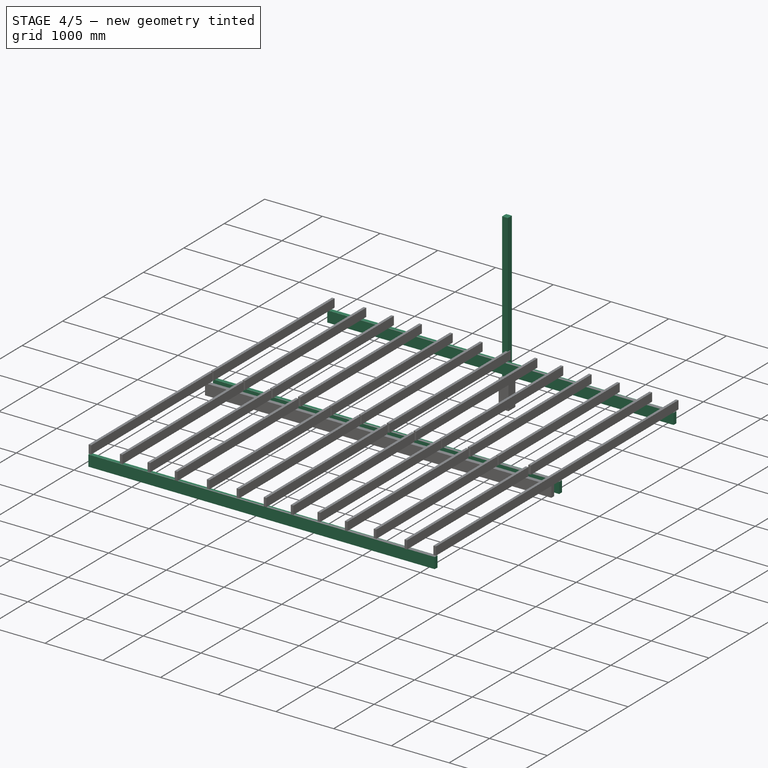
[diagram: stage 4 of 5 — iso view after this stage's code; geometry added in this stage tinted green]
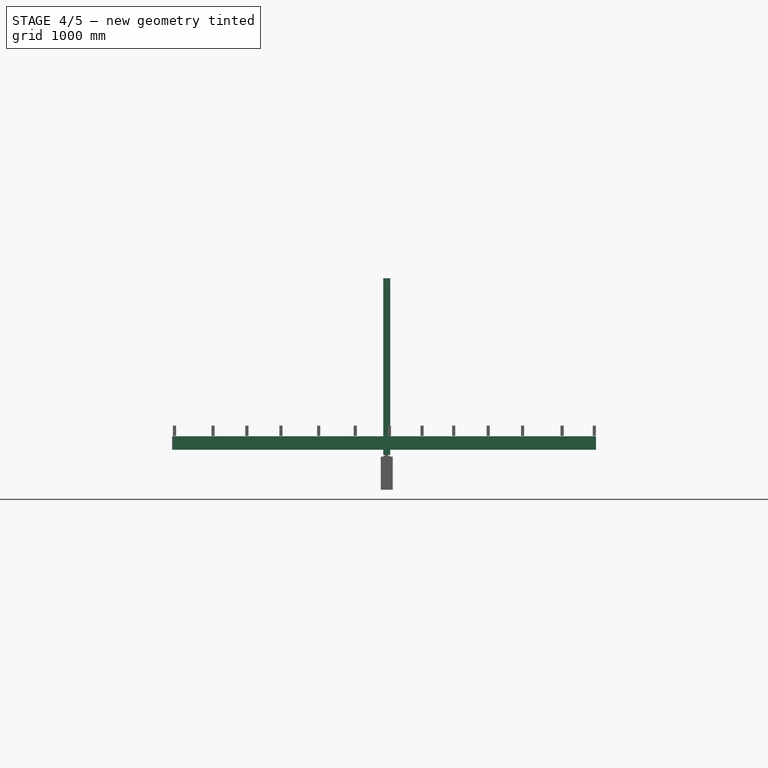
[diagram: stage 4 of 5 — front view after this stage's code; geometry added in this stage tinted green]
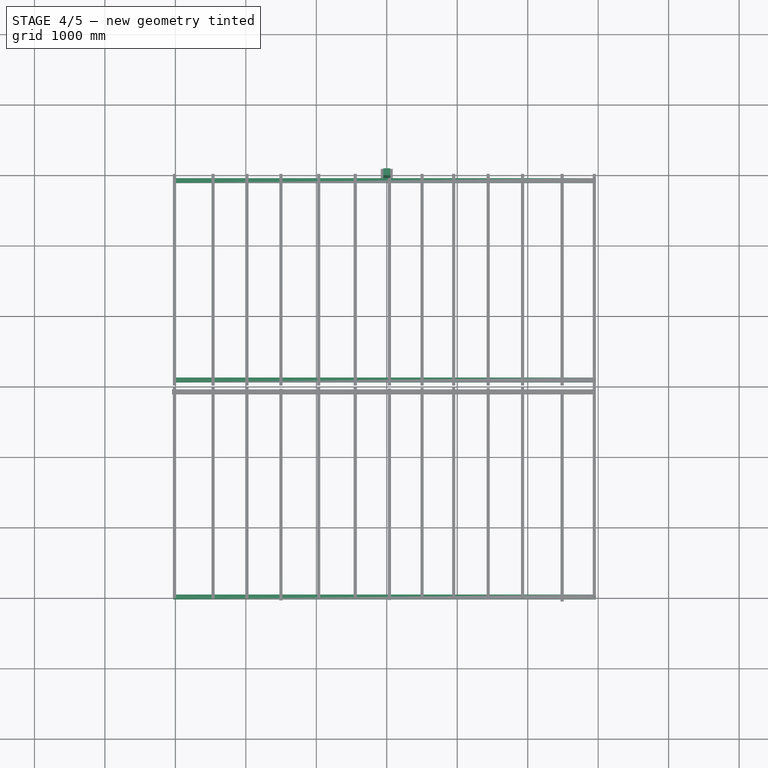
[diagram: stage 4 of 5 — top view after this stage's code; geometry added in this stage tinted green]
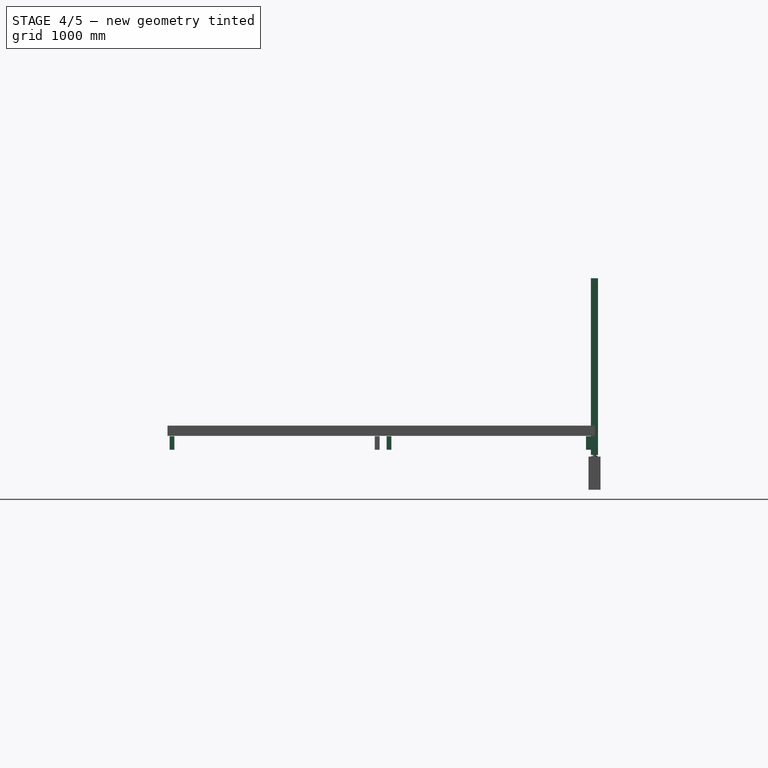
[diagram: stage 4 of 5 — right view after this stage's code; geometry added in this stage tinted green]
FEATURE [Sketcher::SketchObject] Sketch
  FullyConstrained = true
  MapMode = 5
  sketch-geometry (4):
    g0: LineSegment StartX=-85 StartY=-85 StartZ=0 EndX=85 EndY=-85 EndZ=0
    g1: LineSegment StartX=85 StartY=-85 StartZ=0 EndX=85 EndY=85 EndZ=0
    g2: LineSegment StartX=85 StartY=85 StartZ=0 EndX=-85 EndY=85 EndZ=0
    g3: LineSegment StartX=-85 StartY=85 StartZ=0 EndX=-85 EndY=-85 EndZ=0
  constraints (10):
    c: Coincident(g0,g1)
    c: Coincident(g1,g2)
    c: Coincident(g2,g3)
    c: Horizontal(g0)
    c: Vertical(g1)
    c: DistanceX(g0,g0) = 170
    c: DistanceY(g3,g3) = 170
    c: Coincident(g3,g0)
    c: Symmetric(g0,g2,g-1)
    c: Symmetric(g2,g1,g-2)
FEATURE [PartDesign::Pad] Pad  label="Fondation"
  Direction = (1,1,1)
  Length = 400
  Length2 = 100
  Profile = -> Sketch
  Type = 0
FEATURE [Sketcher::SketchObject] Sketch001
  AttachmentOffset = pos=(0,0,500) rot=(0,0,1;0rad)
  FullyConstrained = true
  MapMode = 5
  Placement = pos=(0,0,500) rot=(0,0,1;0rad)
  sketch-geometry (4):
    g0: LineSegment StartX=-50 StartY=50 StartZ=0 EndX=50 EndY=50 EndZ=0
    g1: LineSegment StartX=50 StartY=50 StartZ=0 EndX=50 EndY=-50 EndZ=0
    g2: LineSegment StartX=50 StartY=-50 StartZ=0 EndX=-50 EndY=-50 EndZ=0
    g3: LineSegment StartX=-50 StartY=-50 StartZ=0 EndX=-50 EndY=50 EndZ=0
  constraints (10):
    c: Coincident(g0,g1)
    c: Coincident(g1,g2)
    c: Coincident(g2,g3)
    c: Coincident(g3,g0)
    c: Horizontal(g2)
    c: Vertical(g1)
    c: DistanceX(g2,g2) = 100
    c: DistanceY(g1,g1) = 100
    c: Symmetric(g0,g0,g-2)
    c: Symmetric(g0,g2,g-1)
FEATURE [Sketcher::SketchObject] Sketch004
  FullyConstrained = false
  MapMode = 5
  Placement = pos=(0,0,0) rot=(0.57735,0.57735,0.57735;2.0944rad)
  sketch-geometry (9):
    g0: LineSegment StartX=-45 StartY=500 StartZ=0 EndX=-45 EndY=490 EndZ=0
    g1: LineSegment StartX=-45 StartY=490 StartZ=0 EndX=-20 EndY=490 EndZ=0
    g2: LineSegment StartX=-20 StartY=490 StartZ=0 EndX=-20 EndY=410 EndZ=0
    g3: LineSegment StartX=-20 StartY=410 StartZ=0 EndX=-45 EndY=410 EndZ=0
    g4: LineSegment StartX=-45 StartY=410 StartZ=0 EndX=-45 EndY=400 EndZ=0
    g5: LineSegment StartX=-45 StartY=400 StartZ=0 EndX=0 EndY=400 EndZ=0
    g6: LineSegment StartX=0 StartY=400 StartZ=0 EndX=0 EndY=500 EndZ=0
    g7: LineSegment StartX=0 StartY=500 StartZ=0 EndX=-45 EndY=500 EndZ=0
    g8: LineSegment StartX=0 StartY=526.027 StartZ=0 EndX=0 EndY=331.961 EndZ=0
  constraints (26):
    c: Vertical(g0)
    c: Coincident(g0,g1)
    c: Coincident(g1,g2)
    c: Vertical(g2)
    c: Coincident(g2,g3)
    c: Coincident(g3,g4)
    c: Coincident(g4,g5)
    c: Horizontal(g5)
    c: Coincident(g5,g6)
    c: Vertical(g6)
    c: Coincident(g6,g7)
    c: Coincident(g7,g0)
    c: Horizontal(g7)
    c: DistanceY(g0,g0) = 10
    c: Equal(g4,g0)
    c: Vertical(g4)
    c: DistanceY(g6,g6) = 100
    c: Horizontal(g1)
    c: Horizontal(g3)
    c: DistanceX(g2,g5) = 20
    c: DistanceX(g5,g5) = 45
    c: Equal(g5,g7)
    c: Vertical(g8)
    c: PointOnObject(g5,g8)
    c: DistanceY(g-1,g4) = 400
    c: PointOnObject(g8,g-2)
FEATURE [PartDesign::Revolution] Revolution  label="Support"
  Angle = 360
  Axis = (4.31e-14,-5.39e-14,-194.066)
  Base = (-1.168e-13,1.46e-13,526.027)
  Placement = pos=(0,0,0) rot=(0.57735,0.57735,0.57735;2.0944rad)
  Profile = -> Sketch004
  ReferenceAxis = -> Sketch004 [Axis0]
  Reversed = true
FEATURE [PartDesign::Pad] Pad001  label="Poteau"
  Direction = (1,1,1)
  Length = 2500
  Length2 = 100
  Placement = pos=(0,0,500) rot=(0,0,1;0rad)
  Profile = -> Sketch001
  Type = 0
FEATURE [App::Part] Part  label="Poteau001MM"
  Group = -> [Sketch,Pad,Sketch004,Revolution,Sketch001,Pad001]
  Origin = -> Origin003
  Placement = pos=(90,0,0) rot=(0,0,1;0rad)
FEATURE [Sketcher::SketchObject] Sketch005
  FullyConstrained = false
  MapMode = 5
  Placement = pos=(0,0,0) rot=(0.57735,0.57735,0.57735;2.0944rad)
  Support = -> [YZ_Plane004]
  sketch-geometry (9):
    g0: LineSegment StartX=-45 StartY=500 StartZ=0 EndX=-45 EndY=490 EndZ=0
    g1: LineSegment StartX=-45 StartY=490 StartZ=0 EndX=-20 EndY=490 EndZ=0
    g2: LineSegment StartX=-20 StartY=490 StartZ=0 EndX=-20 EndY=410 EndZ=0
    g3: LineSegment StartX=-20 StartY=410 StartZ=0 EndX=-45 EndY=410 EndZ=0
    g4: LineSegment StartX=-45 StartY=410 StartZ=0 EndX=-45 EndY=400 EndZ=0
    g5: LineSegment StartX=-45 StartY=400 StartZ=0 EndX=0 EndY=400 EndZ=0
    g6: LineSegment StartX=0 StartY=400 StartZ=0 EndX=0 EndY=500 EndZ=0
    g7: LineSegment StartX=0 StartY=500 StartZ=0 EndX=-45 EndY=500 EndZ=0
    g8: LineSegment StartX=0 StartY=526.027 StartZ=0 EndX=0 EndY=331.961 EndZ=0
  constraints (26):
    c: Vertical(g0)
    c: Coincident(g0,g1)
    c: Coincident(g1,g2)
    c: Vertical(g2)
    c: Coincident(g2,g3)
    c: Coincident(g3,g4)
    c: Coincident(g4,g5)
    c: Horizontal(g5)
    c: Coincident(g5,g6)
    c: Vertical(g6)
    c: Coincident(g6,g7)
    c: Coincident(g7,g0)
    c: Horizontal(g7)
    c: DistanceY(g0,g0) = 10
    c: Equal(g4,g0)
    c: Vertical(g4)
    c: DistanceY(g6,g6) = 100
    c: Horizontal(g1)
    c: Horizontal(g3)
    c: DistanceX(g2,g5) = 20
    c: DistanceX(g5,g5) = 45
    c: Equal(g5,g7)
    c: Vertical(g8)
    c: PointOnObject(g5,g8)
    c: DistanceY(g-1,g4) = 400
    c: PointOnObject(g8,g-2)
FEATURE [Sketcher::SketchObject] Sketch006
  FullyConstrained = true
  MapMode = 5
  Support = -> [XY_Plane004]
  sketch-geometry (4):
    g0: LineSegment StartX=-85 StartY=-85 StartZ=0 EndX=85 EndY=-85 EndZ=0
    g1: LineSegment StartX=85 StartY=-85 StartZ=0 EndX=85 EndY=85 EndZ=0
    g2: LineSegment StartX=85 StartY=85 StartZ=0 EndX=-85 EndY=85 EndZ=0
    g3: LineSegment StartX=-85 StartY=85 StartZ=0 EndX=-85 EndY=-85 EndZ=0
  constraints (10):
    c: Coincident(g0,g1)
    c: Coincident(g1,g2)
    c: Coincident(g2,g3)
    c: Horizontal(g0)
    c: Vertical(g1)
    c: DistanceX(g0,g0) = 170
    c: DistanceY(g3,g3) = 170
    c: Coincident(g3,g0)
    c: Symmetric(g0,g2,g-1)
    c: Symmetric(g2,g1,g-2)
FEATURE [Sketcher::SketchObject] Sketch007
  AttachmentOffset = pos=(0,0,500) rot=(0,0,1;0rad)
  FullyConstrained = true
  MapMode = 5
  Placement = pos=(0,0,500) rot=(0,0,1;0rad)
  Support = -> [XY_Plane004]
  sketch-geometry (4):
    g0: LineSegment StartX=-50 StartY=50 StartZ=0 EndX=50 EndY=50 EndZ=0
    g1: LineSegment StartX=50 StartY=50 StartZ=0 EndX=50 EndY=-50 EndZ=0
    g2: LineSegment StartX=50 StartY=-50 StartZ=0 EndX=-50 EndY=-50 EndZ=0
    g3: LineSegment StartX=-50 StartY=-50 StartZ=0 EndX=-50 EndY=50 EndZ=0
  constraints (10):
    c: Coincident(g0,g1)
    c: Coincident(g1,g2)
    c: Coincident(g2,g3)
    c: Coincident(g3,g0)
    c: Horizontal(g2)
    c: Vertical(g1)
    c: DistanceX(g2,g2) = 100
    c: DistanceY(g1,g1) = 100
    c: Symmetric(g0,g0,g-2)
    c: Symmetric(g0,g2,g-1)
FEATURE [PartDesign::Pad] Pad002  label="Poteau003"
  Direction = (1,1,1)
  Length = 2500
  Length2 = 100
  Profile = -> Sketch007
  Type = 0
FEATURE [PartDesign::Pad] Pad003  label="Fondation001"
  Direction = (1,1,1)
  Length = 400
  Length2 = 100
  Profile = -> Sketch006
  Type = 0
FEATURE [PartDesign::Revolution] Revolution001  label="Support001"
  Angle = 360
  Axis = (4.31e-14,-5.39e-14,-194.066)
  Base = (-1.168e-13,1.46e-13,526.027)
  Placement = pos=(0,0,0) rot=(0.57735,0.57735,0.57735;2.0944rad)
  Profile = -> Sketch005
  ReferenceAxis = -> Sketch005 [Axis0]
  Reversed = true
FEATURE [App::Part] Part001  label="Poteau001MD"
  Group = -> [Sketch006,Pad003,Sketch005,Revolution001,Sketch007,Pad002]
  Origin = -> Origin004
  Placement = pos=(3000,0,0) rot=(0,0,1;0rad)
FEATURE [Sketcher::SketchObject] Sketch008
  FullyConstrained = false
  MapMode = 5
  Placement = pos=(0,0,0) rot=(0.57735,0.57735,0.57735;2.0944rad)
  Support = -> [YZ_Plane006]
  sketch-geometry (9):
    g0: LineSegment StartX=-45 StartY=500 StartZ=0 EndX=-45 EndY=490 EndZ=0
    g1: LineSegment StartX=-45 StartY=490 StartZ=0 EndX=-20 EndY=490 EndZ=0
    g2: LineSegment StartX=-20 StartY=490 StartZ=0 EndX=-20 EndY=410 EndZ=0
    g3: LineSegment StartX=-20 StartY=410 StartZ=0 EndX=-45 EndY=410 EndZ=0
    g4: LineSegment StartX=-45 StartY=410 StartZ=0 EndX=-45 EndY=400 EndZ=0
    g5: LineSegment StartX=-45 StartY=400 StartZ=0 EndX=0 EndY=400 EndZ=0
    g6: LineSegment StartX=0 StartY=400 StartZ=0 EndX=0 EndY=500 EndZ=0
    g7: LineSegment StartX=0 StartY=500 StartZ=0 EndX=-45 EndY=500 EndZ=0
    g8: LineSegment StartX=0 StartY=526.027 StartZ=0 EndX=0 EndY=331.961 EndZ=0
  constraints (26):
    c: Vertical(g0)
    c: Coincident(g0,g1)
    c: Coincident(g1,g2)
    c: Vertical(g2)
    c: Coincident(g2,g3)
    c: Coincident(g3,g4)
    c: Coincident(g4,g5)
    c: Horizontal(g5)
    c: Coincident(g5,g6)
    c: Vertical(g6)
    c: Coincident(g6,g7)
    c: Coincident(g7,g0)
    c: Horizontal(g7)
    c: DistanceY(g0,g0) = 10
    c: Equal(g4,g0)
    c: Vertical(g4)
    c: DistanceY(g6,g6) = 100
    c: Horizontal(g1)
    c: Horizontal(g3)
    c: DistanceX(g2,g5) = 20
    c: DistanceX(g5,g5) = 45
    c: Equal(g5,g7)
    c: Vertical(g8)
    c: PointOnObject(g5,g8)
    c: DistanceY(g-1,g4) = 400
    c: PointOnObject(g8,g-2)
FEATURE [Sketcher::SketchObject] Sketch009
  FullyConstrained = true
  MapMode = 5
  Support = -> [XY_Plane006]
  sketch-geometry (4):
    g0: LineSegment StartX=-85 StartY=-85 StartZ=0 EndX=85 EndY=-85 EndZ=0
    g1: LineSegment StartX=85 StartY=-85 StartZ=0 EndX=85 EndY=85 EndZ=0
    g2: LineSegment StartX=85 StartY=85 StartZ=0 EndX=-85 EndY=85 EndZ=0
    g3: LineSegment StartX=-85 StartY=85 StartZ=0 EndX=-85 EndY=-85 EndZ=0
  constraints (10):
    c: Coincident(g0,g1)
    c: Coincident(g1,g2)
    c: Coincident(g2,g3)
    c: Horizontal(g0)
    c: Vertical(g1)
    c: DistanceX(g0,g0) = 170
    c: DistanceY(g3,g3) = 170
    c: Coincident(g3,g0)
    c: Symmetric(g0,g2,g-1)
    c: Symmetric(g2,g1,g-2)
FEATURE [Sketcher::SketchObject] Sketch010
  AttachmentOffset = pos=(0,0,500) rot=(0,0,1;0rad)
  FullyConstrained = true
  MapMode = 5
  Placement = pos=(0,0,500) rot=(0,0,1;0rad)
  Support = -> [XY_Plane006]
  sketch-geometry (4):
    g0: LineSegment StartX=-50 StartY=50 StartZ=0 EndX=50 EndY=50 EndZ=0
    g1: LineSegment StartX=50 StartY=50 StartZ=0 EndX=50 EndY=-50 EndZ=0
    g2: LineSegment StartX=50 StartY=-50 StartZ=0 EndX=-50 EndY=-50 EndZ=0
    g3: LineSegment StartX=-50 StartY=-50 StartZ=0 EndX=-50 EndY=50 EndZ=0
  constraints (10):
    c: Coincident(g0,g1)
    c: Coincident(g1,g2)
    c: Coincident(g2,g3)
    c: Coincident(g3,g0)
    c: Horizontal(g2)
    c: Vertical(g1)
    c: DistanceX(g2,g2) = 100
    c: DistanceY(g1,g1) = 100
    c: Symmetric(g0,g0,g-2)
    c: Symmetric(g0,g2,g-1)
FEATURE [PartDesign::Pad] Pad004  label="Poteau004"
  Direction = (1,1,1)
  Length = 2500
  Length2 = 100
  Profile = -> Sketch010
  Type = 0
FEATURE [PartDesign::Pad] Pad005  label="Fondation002"
  Direction = (1,1,1)
  Length = 400
  Length2 = 100
  Profile = -> Sketch009
  Type = 0
FEATURE [App::Part] Part003  label="Poteau001G"
  Group = -> [Sketch141,Pad011,Sketch140,Revolution005,Sketch138,Pad008]
  Origin = -> Origin006
  Placement = pos=(-3000,-3000,0) rot=(0,0,1;0rad)
FEATURE [App::DocumentObjectGroup] Group  label="PoteauxMaison"
  Group = -> [XY_Plane004,YZ_Plane006,XY_Plane006,Part003,Part004,Part005,YZ_Plane008,XY_Plane008,XY_Plane009,YZ_Plane009,XY_Plane012]
FEATURE [Sketcher::SketchObject] Sketch142
  FullyConstrained = false
  MapMode = 3
  Placement = pos=(0,0,0) rot=(1,0,0;1.5708rad)
  sketch-geometry (4):
    g0: LineSegment StartX=-3030.36 StartY=757.831 StartZ=0 EndX=2969.64 EndY=757.831 EndZ=0
    g1: LineSegment StartX=2969.64 StartY=757.831 StartZ=0 EndX=2969.64 EndY=567.831 EndZ=0
    g2: LineSegment StartX=2969.64 StartY=567.831 StartZ=0 EndX=-3030.36 EndY=567.831 EndZ=0
    g3: LineSegment StartX=-3030.36 StartY=567.831 StartZ=0 EndX=-3030.36 EndY=757.831 EndZ=0
  constraints (10):
    c: Coincident(g0,g1)
    c: Coincident(g1,g2)
    c: Coincident(g2,g3)
    c: Coincident(g3,g0)
    c: Horizontal(g0)
    c: Horizontal(g2)
    c: Vertical(g1)
    c: Vertical(g3)
    c: DistanceX(g0,g0) = 6000
    c: DistanceY(g1,g1) = 190
FEATURE [Part::Extrusion] Extrude
  Base = -> Sketch142
  Dir = (0,-1,2e-16)
  DirMode = 2
  FaceMakerClass = Part::FaceMakerBullseye
  LengthFwd = 68
  LengthRev = 0
  Placement = pos=(0,-51,0) rot=(0,0,1;0rad)
  Solid = true
  Symmetric = false
FEATURE [App::Part] Part006  label="BastaingMaison1"
  Group = -> [Sketch142,Extrude]
  Origin = -> Origin
FEATURE [Sketcher::SketchObject] Sketch143
  FullyConstrained = false
  MapMode = 3
  Placement = pos=(0,0,0) rot=(1,0,0;1.5708rad)
  sketch-geometry (4):
    g0: LineSegment StartX=-3030.36 StartY=757.831 StartZ=0 EndX=2969.64 EndY=757.831 EndZ=0
    g1: LineSegment StartX=2969.64 StartY=757.831 StartZ=0 EndX=2969.64 EndY=567.831 EndZ=0
    g2: LineSegment StartX=2969.64 StartY=567.831 StartZ=0 EndX=-3030.36 EndY=567.831 EndZ=0
    g3: LineSegment StartX=-3030.36 StartY=567.831 StartZ=0 EndX=-3030.36 EndY=757.831 EndZ=0
  constraints (10):
    c: Coincident(g0,g1)
    c: Coincident(g1,g2)
    c: Coincident(g2,g3)
    c: Coincident(g3,g0)
    c: Horizontal(g0)
    c: Horizontal(g2)
    c: Vertical(g1)
    c: Vertical(g3)
    c: DistanceX(g0,g0) = 6000
    c: DistanceY(g1,g1) = 190
FEATURE [Part::Extrusion] Extrude001
  Base = -> Sketch143
  Dir = (0,-1,2e-16)
  DirMode = 2
  FaceMakerClass = Part::FaceMakerBullseye
  LengthFwd = 68
  LengthRev = 0
  Placement = pos=(0,-2881,0) rot=(0,0,1;0rad)
  Solid = true
  Symmetric = false
FEATURE [Sketcher::SketchObject] Sketch158
  FullyConstrained = false
  MapMode = 3
  Placement = pos=(0,0,0) rot=(1,0,0;1.5708rad)
  sketch-geometry (4):
    g0: LineSegment StartX=-3030.36 StartY=757.831 StartZ=0 EndX=2969.64 EndY=757.831 EndZ=0
    g1: LineSegment StartX=2969.64 StartY=757.831 StartZ=0 EndX=2969.64 EndY=567.831 EndZ=0
    g2: LineSegment StartX=2969.64 StartY=567.831 StartZ=0 EndX=-3030.36 EndY=567.831 EndZ=0
    g3: LineSegment StartX=-3030.36 StartY=567.831 StartZ=0 EndX=-3030.36 EndY=757.831 EndZ=0
  constraints (10):
    c: Coincident(g0,g1)
    c: Coincident(g1,g2)
    c: Coincident(g2,g3)
    c: Coincident(g3,g0)
    c: Horizontal(g0)
    c: Horizontal(g2)
    c: Vertical(g1)
    c: Vertical(g3)
    c: DistanceX(g0,g0) = 6000
    c: DistanceY(g1,g1) = 190
FEATURE [Part::Extrusion] Extrude015
  Base = -> Sketch158
  Dir = (0,-1,2e-16)
  DirMode = 2
  FaceMakerClass = Part::FaceMakerBullseye
  LengthFwd = 68
  LengthRev = 0
  Placement = pos=(0,-5961,0) rot=(0,0,1;0rad)
  Solid = true
  Symmetric = false
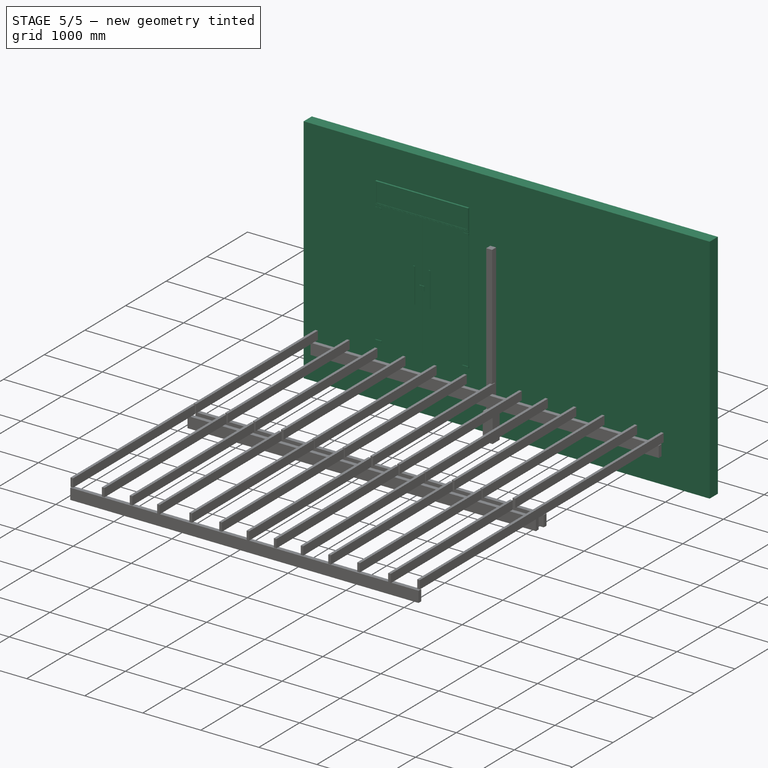
[diagram: stage 5 of 5 — iso view after this stage's code; geometry added in this stage tinted green]
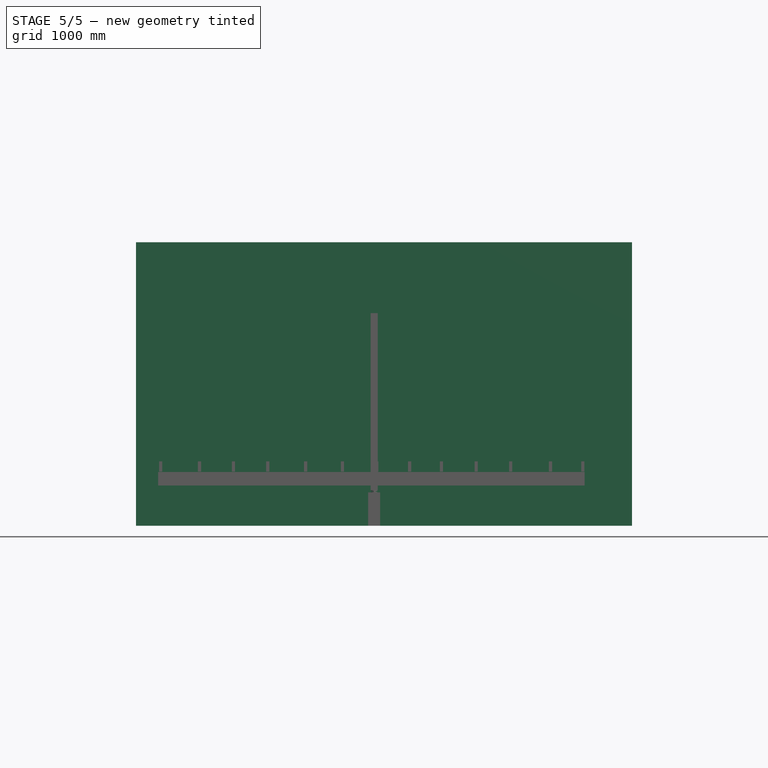
[diagram: stage 5 of 5 — front view after this stage's code; geometry added in this stage tinted green]
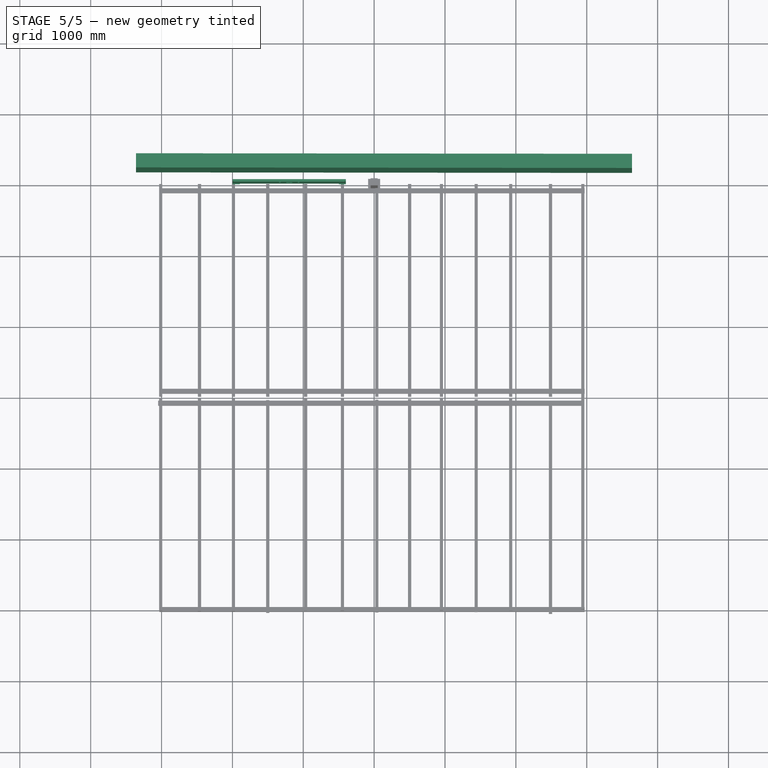
[diagram: stage 5 of 5 — top view after this stage's code; geometry added in this stage tinted green]
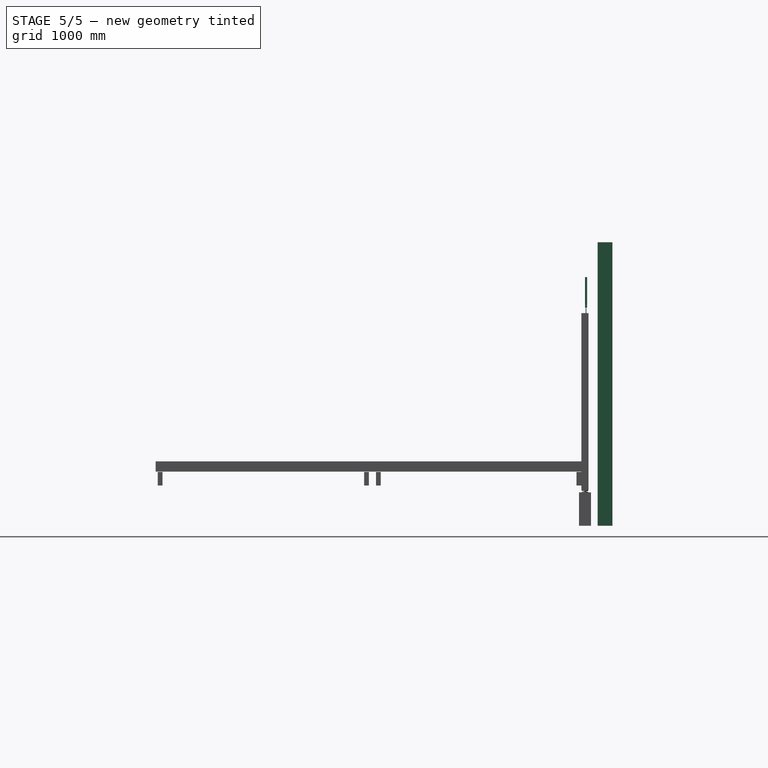
[diagram: stage 5 of 5 — right view after this stage's code; geometry added in this stage tinted green]
FEATURE [App::Part] Part002  label="Poteau001MG"
  Group = -> [Sketch009,Pad005,Sketch008,Revolution002,Sketch010,Pad004]
  Origin = -> Origin005
  Placement = pos=(-3000,0,0) rot=(0,0,1;0rad)
FEATURE [Sketcher::SketchObject] WallTrace
  FullyConstrained = false
  sketch-geometry (1):
    g0: LineSegment StartX=-3361 StartY=286 StartZ=0 EndX=3639 EndY=278.282 EndZ=0
FEATURE [Part::FeaturePython] Wall001  label="Mur001"  # Arch/BIM 166 (typed FeaturePython)
  Align = 2
  Area = 2.8e+07
  Base = -> WallTrace
  BlockHeight = 0
  BlockLength = 0
  CountBroken = 0
  CountEntire = 0
  Face = 0
  Height = 4000
  HorizontalArea = 1400000
  IfcData = attributes={"GlobalId": {"name": "GlobalId", "type": "IfcGloballyUniqueId", "is_enum": false, "enum_values": []}, "Description": {"... (+533 chars omitted),+1 more (map truncated)
  IfcType = 166
  Joint = 0
  Length = 7000
  MakeBlocks = false
  MoveBase = false
  MoveWithHost = false
  Normal = (0,0,1)
  OffsetFirst = 0
  OffsetSecond = 0
  PerimeterLength = 14400
  PredefinedType = 0
  VerticalArea = 5.76e+07
  Width = 200
FEATURE [Sketcher::SketchObject] Sketch130
  FullyConstrained = false
  MapMode = 5
  Placement = pos=(0,0,0) rot=(1,0,0;1.5708rad)
  sketch-geometry (71):
    g0: LineSegment StartX=0 StartY=0 StartZ=0 EndX=1600 EndY=0 EndZ=0
    g1: LineSegment StartX=1600 StartY=0 StartZ=0 EndX=1600 EndY=2499 EndZ=0
    g2: LineSegment StartX=1600 StartY=2499 StartZ=0 EndX=0 EndY=2499 EndZ=0
    g3: LineSegment StartX=0 StartY=2499 StartZ=0 EndX=0 EndY=0 EndZ=0
    g4: LineSegment StartX=1 StartY=0 StartZ=0 EndX=799.5 EndY=0 EndZ=0
    g5: LineSegment StartX=799.5 StartY=0 StartZ=0 EndX=799.5 EndY=2100 EndZ=0
    g6: LineSegment StartX=799.5 StartY=2100 StartZ=0 EndX=1 EndY=2100 EndZ=0
    g7: LineSegment StartX=1 StartY=2100 StartZ=0 EndX=1 EndY=0 EndZ=0
    g8: LineSegment StartX=2 StartY=2099 StartZ=0 EndX=102 EndY=2099 EndZ=0
    g9: LineSegment StartX=102 StartY=2099 StartZ=0 EndX=102 EndY=2069 EndZ=0
    g10: LineSegment StartX=102 StartY=2069 StartZ=0 EndX=2 EndY=2069 EndZ=0
    g11: LineSegment StartX=2 StartY=2069 StartZ=0 EndX=2 EndY=2099 EndZ=0
    g12: LineSegment StartX=2 StartY=1 StartZ=0 EndX=102 EndY=1 EndZ=0
    g13: LineSegment StartX=102 StartY=1 StartZ=0 EndX=102 EndY=31 EndZ=0
    g14: LineSegment StartX=102 StartY=31 StartZ=0 EndX=2 EndY=31 EndZ=0
    g15: LineSegment StartX=2 StartY=31 StartZ=0 EndX=2 EndY=1 EndZ=0
    g16: LineSegment StartX=758.5 StartY=1080 StartZ=0 EndX=798.5 EndY=1080 EndZ=0
    g17: LineSegment StartX=798.5 StartY=1080 StartZ=0 EndX=798.5 EndY=1000 EndZ=0
    g18: LineSegment StartX=798.5 StartY=1000 StartZ=0 EndX=758.5 EndY=1000 EndZ=0
    g19: LineSegment StartX=758.5 StartY=1000 StartZ=0 EndX=758.5 EndY=1080 EndZ=0
    g20: LineSegment StartX=654.5 StartY=1350 StartZ=0 EndX=679.5 EndY=1350 EndZ=0
    g21: LineSegment StartX=679.5 StartY=1350 StartZ=0 EndX=679.5 EndY=750 EndZ=0
    g22: LineSegment StartX=679.5 StartY=750 StartZ=0 EndX=654.5 EndY=750 EndZ=0
    g23: LineSegment StartX=654.5 StartY=750 StartZ=0 EndX=654.5 EndY=1350 EndZ=0
    g24: LineSegment StartX=667 StartY=1477.64 StartZ=0 EndX=667 EndY=711 EndZ=0
    g25: Circle CenterX=667 CenterY=1335 CenterZ=0 NormalX=0 NormalY=0 NormalZ=1 AngleXU=0 Radius=5
    g26: Circle CenterX=667 CenterY=1050 CenterZ=0 NormalX=0 NormalY=0 NormalZ=1 AngleXU=0 Radius=5
    g27: Circle CenterX=667 CenterY=765 CenterZ=0 NormalX=0 NormalY=0 NormalZ=1 AngleXU=0 Radius=5
    g28: LineSegment StartX=712 StartY=1050 StartZ=0 EndX=790 EndY=1050 EndZ=0
    g29: LineSegment StartX=800 StartY=2724.52 StartZ=0 EndX=800 EndY=-390.353 EndZ=0
    g30: LineSegment StartX=1599 StartY=0.0181393 StartZ=0 EndX=800.5 EndY=0.0181393 EndZ=0
    g31: LineSegment StartX=800.5 StartY=0.0181393 StartZ=0 EndX=800.5 EndY=2100 EndZ=0
    g32: LineSegment StartX=800.5 StartY=2100 StartZ=0 EndX=1599 EndY=2100 EndZ=0
    g33: LineSegment StartX=1599 StartY=2100 StartZ=0 EndX=1599 EndY=0.0181393 EndZ=0
    g34: LineSegment StartX=1598 StartY=2099 StartZ=0 EndX=1498 EndY=2099 EndZ=0
    g35: LineSegment StartX=1498 StartY=2099 StartZ=0 EndX=1498 EndY=2069 EndZ=0
    g36: LineSegment StartX=1498 StartY=2069 StartZ=0 EndX=1598 EndY=2069 EndZ=0
    g37: LineSegment StartX=1598 StartY=2069 StartZ=0 EndX=1598 EndY=2099 EndZ=0
    g38: LineSegment StartX=1598 StartY=1.01814 StartZ=0 EndX=1498 EndY=1.01814 EndZ=0
    g39: LineSegment StartX=1498 StartY=1.01814 StartZ=0 EndX=1498 EndY=31.0181 EndZ=0
    g40: LineSegment StartX=1498 StartY=31.0181 StartZ=0 EndX=1598 EndY=31.0181 EndZ=0
    g41: LineSegment StartX=1598 StartY=31.0181 StartZ=0 EndX=1598 EndY=1.01814 EndZ=0
    g42: LineSegment StartX=841.5 StartY=1080 StartZ=0 EndX=801.5 EndY=1080 EndZ=0
    g43: LineSegment StartX=801.5 StartY=1080 StartZ=0 EndX=801.5 EndY=1000 EndZ=0
    g44: LineSegment StartX=801.5 StartY=1000 StartZ=0 EndX=841.5 EndY=1000 EndZ=0
    g45: LineSegment StartX=841.5 StartY=1000 StartZ=0 EndX=841.5 EndY=1080 EndZ=0
    g46: LineSegment StartX=945.5 StartY=1350 StartZ=0 EndX=920.5 EndY=1350 EndZ=0
    g47: LineSegment StartX=920.5 StartY=1350 StartZ=0 EndX=920.5 EndY=750 EndZ=0
    g48: LineSegment StartX=920.5 StartY=750 StartZ=0 EndX=945.5 EndY=750 EndZ=0
    g49: LineSegment StartX=945.5 StartY=750 StartZ=0 EndX=945.5 EndY=1350 EndZ=0
    g50: LineSegment StartX=933 StartY=1477.64 StartZ=0 EndX=933 EndY=711 EndZ=0
    g51: Circle CenterX=933 CenterY=1335 CenterZ=0 NormalX=0 NormalY=0 NormalZ=1 AngleXU=0 Radius=5
    g52: Circle CenterX=933 CenterY=1050 CenterZ=0 NormalX=0 NormalY=0 NormalZ=1 AngleXU=0 Radius=5
    g53: Circle CenterX=933 CenterY=765 CenterZ=0 NormalX=0 NormalY=0 NormalZ=1 AngleXU=0 Radius=5
    g54: LineSegment StartX=1088 StartY=1050 StartZ=0 EndX=1010 EndY=1050 EndZ=0
    g55: LineSegment StartX=-1 StartY=2500 StartZ=0 EndX=1601 EndY=2500 EndZ=0
    g56: LineSegment StartX=1601 StartY=2500 StartZ=0 EndX=1601 EndY=0 EndZ=0
    g57: LineSegment StartX=1601 StartY=0 StartZ=0 EndX=-1 EndY=0 EndZ=0
    g58: LineSegment StartX=-1 StartY=0 StartZ=0 EndX=-1 EndY=2500 EndZ=0
    g59: LineSegment StartX=1 StartY=2498 StartZ=0 EndX=1599 EndY=2498 EndZ=0
    g60: LineSegment StartX=1599 StartY=2498 StartZ=0 EndX=1599 EndY=2142 EndZ=0
    g61: LineSegment StartX=1599 StartY=2142 StartZ=0 EndX=1 EndY=2142 EndZ=0
    g62: LineSegment StartX=1 StartY=2142 StartZ=0 EndX=1 EndY=2498 EndZ=0
    g63: LineSegment StartX=21 StartY=2478 StartZ=0 EndX=1579 EndY=2478 EndZ=0
    g64: LineSegment StartX=1579 StartY=2478 StartZ=0 EndX=1579 EndY=2162 EndZ=0
    g65: LineSegment StartX=1579 StartY=2162 StartZ=0 EndX=21 EndY=2162 EndZ=0
    g66: LineSegment StartX=21 StartY=2162 StartZ=0 EndX=21 EndY=2478 EndZ=0
    g67: LineSegment StartX=1 StartY=2141 StartZ=0 EndX=1599 EndY=2141 EndZ=0
    g68: LineSegment StartX=1599 StartY=2141 StartZ=0 EndX=1599 EndY=2101 EndZ=0
    g69: LineSegment StartX=1599 StartY=2101 StartZ=0 EndX=1 EndY=2101 EndZ=0
    g70: LineSegment StartX=1 StartY=2101 StartZ=0 EndX=1 EndY=2141 EndZ=0
  constraints (203):
    c: Coincident(g0,g1)
    c: Coincident(g1,g2)
    c: Coincident(g2,g3)
    c: Coincident(g3,g0)
    c: Horizontal(g0)
    c: Horizontal(g2)
    c: Vertical(g1)
    c: Vertical(g3)
    c: Coincident(g4,g5)
    c: Coincident(g5,g6)
    c: Coincident(g6,g7)
    c: Coincident(g7,g4)
    c: Horizontal(g4)
    c: Horizontal(g6)
    c: Vertical(g5)
    c: Vertical(g7)
    c: DistanceX(g0) = 1600  'Largura vão'
    c: DistanceX(g2,g6) = 1  'Constraint18'
    c: DistanceY(g0,g4) = 0
    c: Coincident(g0,g-1)
    c: Coincident(g8,g9)
    c: Coincident(g9,g10)
    c: Coincident(g10,g11)
    c: Coincident(g11,g8)
    c: Horizontal(g8)
    c: Horizontal(g10)
    c: Vertical(g9)
    c: Vertical(g11)
    c: Coincident(g12,g13)
    c: Coincident(g13,g14)
    c: Coincident(g14,g15)
    c: Coincident(g15,g12)
    c: Horizontal(g12)
    c: Horizontal(g14)
    c: Vertical(g13)
    c: Vertical(g15)
    c: Coincident(g16,g17)
    c: Coincident(g17,g18)
    c: Coincident(g18,g19)
    c: Coincident(g19,g16)
    c: Horizontal(g16)
    c: Horizontal(g18)
    c: Vertical(g17)
    c: Vertical(g19)
    c: DistanceY(g8,g6) = 1
    c: DistanceX(g6,g8) = 1
    c: DistanceY(g9,g8) = 30
    c: DistanceX(g10,g9) = 100
    c: DistanceX(g4,g12) = 1
    c: DistanceY(g4,g12) = 1
    c: DistanceX(g17,g4) = 1
    c: DistanceY(g18,g16) = 80
    c: DistanceX(g16,g16) = 40
    c: DistanceY(g4,g18) = 1000
    c: Coincident(g20,g21)
    c: Coincident(g21,g22)
    c: Coincident(g22,g23)
    c: Coincident(g23,g20)
    c: Horizontal(g20)
    c: Horizontal(g22)
    c: Vertical(g21)
    c: Vertical(g23)
    c: DistanceX(g20,g20) = 25  'Largura puxador'
    c: DistanceY(g21,g20) = 600  'Altura puxador'
    c: Vertical(g24)  'Constraint69'
    c: Symmetric(g20,g20,g24)  'Constraint67'
    c: PointOnObject(g25,g24)  'Constraint72'
    c: PointOnObject(g26,g24)  'Constraint71'
    c: PointOnObject(g27,g24)
    c: Radius(g27) = 5  'Apoio puxador'
    c: Equal(g27,g26)  'Constraint83'
    c: Equal(g27,g25)  'Constraint82'
    c: DistanceY(g25,g20) = 15  'Constraint73'
    c: DistanceY(g21,g27) = 15
    c: Horizontal(g28)
    c: PointOnObject(g26,g28)
    c: Symmetric(g22,g20,g28)
    c: DistanceY(g4,g21) = 750  'Distância do puxador ao solo'
    c: DistanceX(g21,g4) = 120  'Distância do puxador'
    c: Vertical(g29)
    c: Symmetric(g2,g1,g29)
    c: Coincident(g30,g31)
    c: Coincident(g31,g32)
    c: Coincident(g32,g33)
    c: Coincident(g33,g30)
    c: Horizontal(g30)
    c: Horizontal(g32)
    c: Vertical(g31)
    c: Vertical(g33)
    c: Coincident(g34,g35)
    c: Coincident(g35,g36)
    c: Coincident(g36,g37)
    c: Coincident(g37,g34)
    c: Horizontal(g34)
    c: Horizontal(g36)
    c: Vertical(g35)
    c: Vertical(g37)
    c: Coincident(g38,g39)
    c: Coincident(g39,g40)
    c: Coincident(g40,g41)
    c: Coincident(g41,g38)
    c: Horizontal(g38)
    c: Horizontal(g40)
    c: Vertical(g39)
    c: Vertical(g41)
    c: Coincident(g42,g43)
    c: Coincident(g43,g44)
    c: Coincident(g44,g45)
    c: Coincident(g45,g42)
    c: Horizontal(g42)
    c: Horizontal(g44)
    c: Vertical(g43)
    c: Vertical(g45)
    c: Coincident(g46,g47)
    c: Coincident(g47,g48)
    c: Coincident(g48,g49)
    c: Coincident(g49,g46)
    c: Horizontal(g46)
    c: Horizontal(g48)
    c: Vertical(g47)
    c: Vertical(g49)
    c: Vertical(g50)  'Constraint69'
    c: Symmetric(g46,g46,g50)  'Constraint126'
    c: PointOnObject(g51,g50)  'Constraint72'
    c: PointOnObject(g52,g50)  'Constraint127'
    c: PointOnObject(g53,g50)
    c: Radius(g53) = 5  'Apoio puxador'
    c: Equal(g53,g52)  'Constraint83'
    c: Equal(g53,g51)  'Constraint82'
    c: Horizontal(g54)
    c: PointOnObject(g52,g54)
    c: Symmetric(g48,g46,g54)
    c: Coincident(g55,g56)
    c: Coincident(g56,g57)
    c: Coincident(g57,g58)
    c: Coincident(g58,g55)
    c: Horizontal(g55)
    c: Horizontal(g57)
    c: Vertical(g56)
    c: Vertical(g58)
    c: DistanceX(g55,g2) = 1
    c: DistanceY(g2,g55) = 1
    c: DistanceX(g1,g55) = 1
    c: DistanceY(g57,g-1) = 0
    c: DistanceY(g-1,g6) = 2100  'Altura portas'
    c: Coincident(g59,g60)
    c: Coincident(g60,g61)
    c: Coincident(g61,g62)
    c: Coincident(g62,g59)
    c: Horizontal(g59)
    c: Horizontal(g61)
    c: Vertical(g60)
    c: Vertical(g62)
    c: Coincident(g63,g64)
    c: Coincident(g64,g65)
    c: Coincident(g65,g66)
    c: Coincident(g66,g63)
    c: Horizontal(g63)
    c: Horizontal(g65)
    c: Vertical(g64)
    c: Vertical(g66)
    c: Coincident(g67,g68)
    c: Coincident(g68,g69)
    c: Coincident(g69,g70)
    c: Coincident(g70,g67)
    c: Horizontal(g67)
    c: Horizontal(g69)
    c: Vertical(g68)
    c: Vertical(g70)
    c: DistanceX(g67,g61) = 0
    c: DistanceY(g67,g61) = 1
    c: DistanceY(g61,g65) = 20  'Altura perfil bandeira 1'
    c: DistanceX(g61,g65) = 20  'Largura perfil bandeira 1'
    c: DistanceY(g63,g59) = 20  'Altura perfil bandeira 2'
    c: DistanceX(g63,g59) = 20  'Largura perfil bandeira'
    c: DistanceX(g60,g67) = 0
    c: DistanceX(g30,g0) = 1
    c: DistanceX(g68,g32) = 0
    c: DistanceX(g6,g69) = 0
    c: DistanceY(g6,g69) = 1
    c: DistanceY(g69,g67) = 40  'Altura perfil bandeira'
    c: DistanceY(g59,g2) = 1
    c: DistanceY(g6,g55) = 400  'Altura bandeira'
    c: Symmetric(g55,g55,g29)
    c: DistanceX(g34,g32) = 1
    c: DistanceY(g34,g32) = 1
    c: DistanceY(g30,g38) = 1
    c: DistanceX(g38,g30) = 1
    c: DistanceY(g31,g5) = 0
    c: Symmetric(g5,g31,g29)
    c: Symmetric(g24,g50,g29)
    c: Equal(g9,g35)
    c: Equal(g35,g39)
    c: Equal(g39,g13)
    c: Equal(g10,g36)
    c: Equal(g36,g40)
    c: Equal(g40,g14)
    c: DistanceX(g5,g31) = 1
    c: Equal(g20,g46)
    c: Symmetric(g16,g42,g29)
    c: DistanceX(g16,g42) = 3
    c: Equal(g16,g42)
    c: Equal(g19,g45)
FEATURE [Part::FeaturePython] Window093  label="Double glass doors with handles and transom 001"  # Arch/BIM 41 (typed FeaturePython)
  Area = 100000
  Base = -> Sketch130
  Frame = 0
  Height = 200
  HoleDepth = 0
  HoleWire = 0
  HorizontalArea = 0
  IfcData = attributes={"OverallWidth": {"value": 500.0}, "OverallHeight": {"value": 200.0}}
  IfcType = 41
  LouvreSpacing = 0
  LouvreWidth = 0
  MoveBase = false
  MoveWithHost = true
  Normal = (0,1,0)
  Opening = 0
  OperationType = 0
  OverallHeight = 200
  OverallWidth = 500
  PerimeterLength = 0
  Placement = pos=(-1998,0,1010) rot=(0,0,1;0rad)
  PredefinedType = 0
  Preset = 6
  SymbolElevation = false
  SymbolPlan = false
  VerticalArea = 0
  Width = 500
  WindowParts = PORTA 1 | Glass panel | Wire1 | 10.0 | 10.0 | APOIO SUPERIOR PORTA 1 | Frame | Wire2 | 30.0 | 0.0 | APOIO INFERIOR PORTA 1 | Frame | Wire3 | 30.0 | 0.0 | TRANCA 1 | Frame | Wire4 | 30.0 | 0.0 | PUXADOR 1A | Frame | Wire5 | 10.0 | 0.0 | PUXADOR 2A | Frame | Wire13 | 10.0 | 0.0 | APOIO SUPERIOR PUXADOR 1 | Frame | Wire6 | 30.0 | 0.0 | APOIO CENTRAL PUXADOR 1 | Frame | Wire7 | 30.0 | 0.0 | APOIO INFERIOR PUXADOR 1 | Frame | Wire8 | 30.0 | 0.0 | PORTA 2 | Glass panel | Wire9 | 10.0 | 10.0 | APOIO SUPERIOR PORTA 2 | Frame | Wire10 | 30.0 | 0.0 | APOIO INFERIOR PORTA 2 | Frame | Wire11 | 30.0 | 0.0 | TRANCA 2 | Frame | Wire12 | 30.0 | 0.0 | APOIO SUPERIOR PUXADOR 2 | Frame | Wire14 | 30.0 | 0.0 | APOIO CENTRAL PUXADOR 2 | Frame | Wire15 | 30.0 | 0.0 | APOIO INFERIOR PUXADOR 2 | Frame | Wire16 | 30.0 | 0.0 | PUXADOR 2B | Frame | Wire13 | 10.0 | 20.0 | PERFIL BASE BANDEIRA | Frame | Wire20 | 30.0 | 0.0 | PERFIL BANDEIRA | Frame | Wire19,Wire18 | 30.0 | 0.0 | VIDRO BANDEIRA | Glass panel | Wire19 | 10.0 | 5.0 | PUXADOR 1B | Frame | Wire5 | 10.0 | 20.0
  expr: OverallHeight = .Height.Value
  expr: OverallWidth = .Width.Value
FEATURE [Sketcher::SketchObject] Sketch131  label="Opening indication "
  AttachmentOffset = pos=(0,0,100) rot=(0,0,1;0rad)
  ExternalGeometry = -> [Window093]
  FullyConstrained = false
  MapMode = 5
  Placement = pos=(-1998,94.497,660) rot=(1,0,0;1.5708rad)
  sketch-geometry (6):
    g0: LineSegment StartX=-578.323 StartY=1041.81 StartZ=0 EndX=1784.68 EndY=1041.81 EndZ=0
    g1: LineSegment StartX=60 StartY=2317.2 StartZ=0 EndX=60 EndY=-99.6345 EndZ=0
    g2: LineSegment StartX=1 StartY=1041.81 StartZ=0 EndX=60 EndY=2450 EndZ=0
    g3: LineSegment StartX=60 StartY=2450 StartZ=0 EndX=799.5 EndY=1041.81 EndZ=0
    g4: LineSegment StartX=799.5 StartY=1041.81 StartZ=0 EndX=60 EndY=350 EndZ=0
    g5: LineSegment StartX=60 StartY=350 StartZ=0 EndX=1 EndY=1041.81 EndZ=0
  constraints (16):
    c: Horizontal(g0)
    c: DistanceY(g-1,g0) = 1041.81  'Altura tranca'
    c: Vertical(g1)
    c: PointOnObject(g2,g0)
    c: Coincident(g2,g3)
    c: PointOnObject(g3,g-5)
    c: Coincident(g3,g4)
    c: PointOnObject(g4,g-6)
    c: Coincident(g4,g5)
    c: Coincident(g5,g2)
    c: PointOnObject(g2,g-4)
    c: PointOnObject(g2,g-3)
    c: PointOnObject(g2,g1)
    c: PointOnObject(g4,g1)
    c: PointOnObject(g3,g0)
    c: DistanceX(g-1,g1) = 60  'Eixo porta'
FEATURE [Sketcher::SketchObject] Sketch132  label="Opening indication 001"
  ExternalGeometry = -> [Window093]
  FullyConstrained = false
  MapMode = 5
  Placement = pos=(-1998,10,1010) rot=(1,0,0;1.5708rad)
  Support = -> [Window093]
  sketch-geometry (6):
    g0: LineSegment StartX=-496.649 StartY=1041.19 StartZ=0 EndX=2033.7 EndY=1041.19 EndZ=0
    g1: LineSegment StartX=1539 StartY=2387.2 StartZ=0 EndX=1539 EndY=-146 EndZ=0
    g2: LineSegment StartX=799.5 StartY=1041.19 StartZ=0 EndX=1539 EndY=0.0181393 EndZ=0
    g3: LineSegment StartX=1539 StartY=0.0181393 StartZ=0 EndX=1599 EndY=1041.19 EndZ=0
    g4: LineSegment StartX=1599 StartY=1041.19 StartZ=0 EndX=1539 EndY=2100 EndZ=0
    g5: LineSegment StartX=1539 StartY=2100 StartZ=0 EndX=799.5 EndY=1041.19 EndZ=0
  constraints (16):
    c: Horizontal(g0)
    c: DistanceY(g-1,g0) = 1041.19  'Altura da tranca'
    c: Vertical(g1)
    c: DistanceX(g1,g-6) = 60  'Eixo porta'
    c: PointOnObject(g2,g-4)
    c: PointOnObject(g2,g-6)
    c: Coincident(g2,g3)
    c: PointOnObject(g3,g-5)
    c: Coincident(g3,g4)
    c: PointOnObject(g4,g-3)
    c: Coincident(g4,g5)
    c: Coincident(g5,g2)
    c: PointOnObject(g2,g0)
    c: PointOnObject(g3,g0)
    c: PointOnObject(g2,g1)
    c: PointOnObject(g4,g1)
FEATURE [App::DocumentObjectGroup] Grupo100  label="Double glass doors with handles and transom "
  Group = -> [Sketch131,Sketch132,Window093]
FEATURE [App::DocumentObjectGroup] Group001  label="Maison"
  Group = -> [Wall001,Grupo100]
FEATURE [Sketcher::SketchObject] Sketch133
  FullyConstrained = false
  MapMode = 5
  Placement = pos=(0,0,0) rot=(0.57735,0.57735,0.57735;2.0944rad)
  Support = -> [YZ_Plane008]
  sketch-geometry (9):
    g0: LineSegment StartX=-45 StartY=500 StartZ=0 EndX=-45 EndY=490 EndZ=0
    g1: LineSegment StartX=-45 StartY=490 StartZ=0 EndX=-20 EndY=490 EndZ=0
    g2: LineSegment StartX=-20 StartY=490 StartZ=0 EndX=-20 EndY=410 EndZ=0
    g3: LineSegment StartX=-20 StartY=410 StartZ=0 EndX=-45 EndY=410 EndZ=0
    g4: LineSegment StartX=-45 StartY=410 StartZ=0 EndX=-45 EndY=400 EndZ=0
    g5: LineSegment StartX=-45 StartY=400 StartZ=0 EndX=0 EndY=400 EndZ=0
    g6: LineSegment StartX=0 StartY=400 StartZ=0 EndX=0 EndY=500 EndZ=0
    g7: LineSegment StartX=0 StartY=500 StartZ=0 EndX=-45 EndY=500 EndZ=0
    g8: LineSegment StartX=0 StartY=526.027 StartZ=0 EndX=0 EndY=331.961 EndZ=0
  constraints (26):
    c: Vertical(g0)
    c: Coincident(g0,g1)
    c: Coincident(g1,g2)
    c: Vertical(g2)
    c: Coincident(g2,g3)
    c: Coincident(g3,g4)
    c: Coincident(g4,g5)
    c: Horizontal(g5)
    c: Coincident(g5,g6)
    c: Vertical(g6)
    c: Coincident(g6,g7)
    c: Coincident(g7,g0)
    c: Horizontal(g7)
    c: DistanceY(g0,g0) = 10
    c: Equal(g4,g0)
    c: Vertical(g4)
    c: DistanceY(g6,g6) = 100
    c: Horizontal(g1)
    c: Horizontal(g3)
    c: DistanceX(g2,g5) = 20
    c: DistanceX(g5,g5) = 45
    c: Equal(g5,g7)
    c: Vertical(g8)
    c: PointOnObject(g5,g8)
    c: DistanceY(g-1,g4) = 400
    c: PointOnObject(g8,g-2)
FEATURE [Sketcher::SketchObject] Sketch134
  FullyConstrained = true
  MapMode = 5
  Support = -> [XY_Plane009]
  sketch-geometry (4):
    g0: LineSegment StartX=-85 StartY=-85 StartZ=0 EndX=85 EndY=-85 EndZ=0
    g1: LineSegment StartX=85 StartY=-85 StartZ=0 EndX=85 EndY=85 EndZ=0
    g2: LineSegment StartX=85 StartY=85 StartZ=0 EndX=-85 EndY=85 EndZ=0
    g3: LineSegment StartX=-85 StartY=85 StartZ=0 EndX=-85 EndY=-85 EndZ=0
  constraints (10):
    c: Coincident(g0,g1)
    c: Coincident(g1,g2)
    c: Coincident(g2,g3)
    c: Horizontal(g0)
    c: Vertical(g1)
    c: DistanceX(g0,g0) = 170
    c: DistanceY(g3,g3) = 170
    c: Coincident(g3,g0)
    c: Symmetric(g0,g2,g-1)
    c: Symmetric(g2,g1,g-2)
FEATURE [Sketcher::SketchObject] Sketch135
  FullyConstrained = false
  MapMode = 5
  Placement = pos=(0,0,0) rot=(0.57735,0.57735,0.57735;2.0944rad)
  Support = -> [YZ_Plane009]
  sketch-geometry (9):
    g0: LineSegment StartX=-45 StartY=500 StartZ=0 EndX=-45 EndY=490 EndZ=0
    g1: LineSegment StartX=-45 StartY=490 StartZ=0 EndX=-20 EndY=490 EndZ=0
    g2: LineSegment StartX=-20 StartY=490 StartZ=0 EndX=-20 EndY=410 EndZ=0
    g3: LineSegment StartX=-20 StartY=410 StartZ=0 EndX=-45 EndY=410 EndZ=0
    g4: LineSegment StartX=-45 StartY=410 StartZ=0 EndX=-45 EndY=400 EndZ=0
    g5: LineSegment StartX=-45 StartY=400 StartZ=0 EndX=0 EndY=400 EndZ=0
    g6: LineSegment StartX=0 StartY=400 StartZ=0 EndX=0 EndY=500 EndZ=0
    g7: LineSegment StartX=0 StartY=500 StartZ=0 EndX=-45 EndY=500 EndZ=0
    g8: LineSegment StartX=0 StartY=526.027 StartZ=0 EndX=0 EndY=331.961 EndZ=0
  constraints (26):
    c: Vertical(g0)
    c: Coincident(g0,g1)
    c: Coincident(g1,g2)
    c: Vertical(g2)
    c: Coincident(g2,g3)
    c: Coincident(g3,g4)
    c: Coincident(g4,g5)
    c: Horizontal(g5)
    c: Coincident(g5,g6)
    c: Vertical(g6)
    c: Coincident(g6,g7)
    c: Coincident(g7,g0)
    c: Horizontal(g7)
    c: DistanceY(g0,g0) = 10
    c: Equal(g4,g0)
    c: Vertical(g4)
    c: DistanceY(g6,g6) = 100
    c: Horizontal(g1)
    c: Horizontal(g3)
    c: DistanceX(g2,g5) = 20
    c: DistanceX(g5,g5) = 45
    c: Equal(g5,g7)
    c: Vertical(g8)
    c: PointOnObject(g5,g8)
    c: DistanceY(g-1,g4) = 400
    c: PointOnObject(g8,g-2)
FEATURE [Sketcher::SketchObject] Sketch136
  FullyConstrained = true
  MapMode = 5
  Support = -> [XY_Plane008]
  sketch-geometry (4):
    g0: LineSegment StartX=-85 StartY=-85 StartZ=0 EndX=85 EndY=-85 EndZ=0
    g1: LineSegment StartX=85 StartY=-85 StartZ=0 EndX=85 EndY=85 EndZ=0
    g2: LineSegment StartX=85 StartY=85 StartZ=0 EndX=-85 EndY=85 EndZ=0
    g3: LineSegment StartX=-85 StartY=85 StartZ=0 EndX=-85 EndY=-85 EndZ=0
  constraints (10):
    c: Coincident(g0,g1)
    c: Coincident(g1,g2)
    c: Coincident(g2,g3)
    c: Horizontal(g0)
    c: Vertical(g1)
    c: DistanceX(g0,g0) = 170
    c: DistanceY(g3,g3) = 170
    c: Coincident(g3,g0)
    c: Symmetric(g0,g2,g-1)
    c: Symmetric(g2,g1,g-2)
FEATURE [Sketcher::SketchObject] Sketch137
  AttachmentOffset = pos=(0,0,500) rot=(0,0,1;0rad)
  FullyConstrained = true
  MapMode = 5
  Placement = pos=(0,0,500) rot=(0,0,1;0rad)
  Support = -> [XY_Plane008]
  sketch-geometry (4):
    g0: LineSegment StartX=-50 StartY=50 StartZ=0 EndX=50 EndY=50 EndZ=0
    g1: LineSegment StartX=50 StartY=50 StartZ=0 EndX=50 EndY=-50 EndZ=0
    g2: LineSegment StartX=50 StartY=-50 StartZ=0 EndX=-50 EndY=-50 EndZ=0
    g3: LineSegment StartX=-50 StartY=-50 StartZ=0 EndX=-50 EndY=50 EndZ=0
  constraints (10):
    c: Coincident(g0,g1)
    c: Coincident(g1,g2)
    c: Coincident(g2,g3)
    c: Coincident(g3,g0)
    c: Horizontal(g2)
    c: Vertical(g1)
    c: DistanceX(g2,g2) = 100
    c: DistanceY(g1,g1) = 100
    c: Symmetric(g0,g0,g-2)
    c: Symmetric(g0,g2,g-1)
FEATURE [PartDesign::Pad] Pad006  label="Poteau005"
  Direction = (1,1,1)
  Length = 2500
  Length2 = 100
  Profile = -> Sketch137
  Type = 0
FEATURE [PartDesign::Pad] Pad007  label="Fondation003"
  Direction = (1,1,1)
  Length = 400
  Length2 = 100
  Profile = -> Sketch136
  Type = 0
FEATURE [PartDesign::Pad] Pad009  label="Fondation004"
  Direction = (1,1,1)
  Length = 400
  Length2 = 100
  Profile = -> Sketch134
  Type = 0
FEATURE [PartDesign::Revolution] Revolution003  label="Support003"
  Angle = 360
  Axis = (4.31e-14,-5.39e-14,-194.066)
  Base = (-1.168e-13,1.46e-13,526.027)
  Placement = pos=(0,0,0) rot=(0.57735,0.57735,0.57735;2.0944rad)
  Profile = -> Sketch133
  ReferenceAxis = -> Sketch133 [Axis0]
  Reversed = true
FEATURE [App::Part] Part005  label="Poteau001M"
  Group = -> [Sketch136,Pad007,Sketch133,Revolution003,Sketch137,Pad006]
  Origin = -> Origin007
  Placement = pos=(0,-3000,0) rot=(0,0,1;0rad)
FEATURE [Sketcher::SketchObject] Sketch138
  AttachmentOffset = pos=(0,0,500) rot=(0,0,1;0rad)
  FullyConstrained = true
  MapMode = 5
  Placement = pos=(0,0,500) rot=(0,0,1;0rad)
  Support = -> [XY_Plane012]
  sketch-geometry (4):
    g0: LineSegment StartX=-50 StartY=50 StartZ=0 EndX=50 EndY=50 EndZ=0
    g1: LineSegment StartX=50 StartY=50 StartZ=0 EndX=50 EndY=-50 EndZ=0
    g2: LineSegment StartX=50 StartY=-50 StartZ=0 EndX=-50 EndY=-50 EndZ=0
    g3: LineSegment StartX=-50 StartY=-50 StartZ=0 EndX=-50 EndY=50 EndZ=0
  constraints (10):
    c: Coincident(g0,g1)
    c: Coincident(g1,g2)
    c: Coincident(g2,g3)
    c: Coincident(g3,g0)
    c: Horizontal(g2)
    c: Vertical(g1)
    c: DistanceX(g2,g2) = 100
    c: DistanceY(g1,g1) = 100
    c: Symmetric(g0,g0,g-2)
    c: Symmetric(g0,g2,g-1)
FEATURE [PartDesign::Pad] Pad008  label="Poteau006"
  Direction = (1,1,1)
  Length = 2500
  Length2 = 100
  Profile = -> Sketch138
  Type = 0
FEATURE [Sketcher::SketchObject] Sketch139
  AttachmentOffset = pos=(0,0,500) rot=(0,0,1;0rad)
  FullyConstrained = true
  MapMode = 5
  Placement = pos=(0,0,500) rot=(0,0,1;0rad)
  Support = -> [XY_Plane009]
  sketch-geometry (4):
    g0: LineSegment StartX=-50 StartY=50 StartZ=0 EndX=50 EndY=50 EndZ=0
    g1: LineSegment StartX=50 StartY=50 StartZ=0 EndX=50 EndY=-50 EndZ=0
    g2: LineSegment StartX=50 StartY=-50 StartZ=0 EndX=-50 EndY=-50 EndZ=0
    g3: LineSegment StartX=-50 StartY=-50 StartZ=0 EndX=-50 EndY=50 EndZ=0
  constraints (10):
    c: Coincident(g0,g1)
    c: Coincident(g1,g2)
    c: Coincident(g2,g3)
    c: Coincident(g3,g0)
    c: Horizontal(g2)
    c: Vertical(g1)
    c: DistanceX(g2,g2) = 100
    c: DistanceY(g1,g1) = 100
    c: Symmetric(g0,g0,g-2)
    c: Symmetric(g0,g2,g-1)
FEATURE [PartDesign::Pad] Pad010  label="Poteau007"
  Direction = (1,1,1)
  Length = 2500
  Length2 = 100
  Profile = -> Sketch139
  Type = 0
FEATURE [Sketcher::SketchObject] Sketch140
  FullyConstrained = false
  MapMode = 5
  Placement = pos=(0,0,0) rot=(0.57735,0.57735,0.57735;2.0944rad)
  Support = -> [YZ_Plane013]
  sketch-geometry (9):
    g0: LineSegment StartX=-45 StartY=500 StartZ=0 EndX=-45 EndY=490 EndZ=0
    g1: LineSegment StartX=-45 StartY=490 StartZ=0 EndX=-20 EndY=490 EndZ=0
    g2: LineSegment StartX=-20 StartY=490 StartZ=0 EndX=-20 EndY=410 EndZ=0
    g3: LineSegment StartX=-20 StartY=410 StartZ=0 EndX=-45 EndY=410 EndZ=0
    g4: LineSegment StartX=-45 StartY=410 StartZ=0 EndX=-45 EndY=400 EndZ=0
    g5: LineSegment StartX=-45 StartY=400 StartZ=0 EndX=0 EndY=400 EndZ=0
    g6: LineSegment StartX=0 StartY=400 StartZ=0 EndX=0 EndY=500 EndZ=0
    g7: LineSegment StartX=0 StartY=500 StartZ=0 EndX=-45 EndY=500 EndZ=0
    g8: LineSegment StartX=0 StartY=526.027 StartZ=0 EndX=0 EndY=331.961 EndZ=0
  constraints (26):
    c: Vertical(g0)
    c: Coincident(g0,g1)
    c: Coincident(g1,g2)
    c: Vertical(g2)
    c: Coincident(g2,g3)
    c: Coincident(g3,g4)
    c: Coincident(g4,g5)
    c: Horizontal(g5)
    c: Coincident(g5,g6)
    c: Vertical(g6)
    c: Coincident(g6,g7)
    c: Coincident(g7,g0)
    c: Horizontal(g7)
    c: DistanceY(g0,g0) = 10
    c: Equal(g4,g0)
    c: Vertical(g4)
    c: DistanceY(g6,g6) = 100
    c: Horizontal(g1)
    c: Horizontal(g3)
    c: DistanceX(g2,g5) = 20
    c: DistanceX(g5,g5) = 45
    c: Equal(g5,g7)
    c: Vertical(g8)
    c: PointOnObject(g5,g8)
    c: DistanceY(g-1,g4) = 400
    c: PointOnObject(g8,g-2)
FEATURE [Sketcher::SketchObject] Sketch141
  FullyConstrained = true
  MapMode = 5
  Support = -> [XY_Plane012]
  sketch-geometry (4):
    g0: LineSegment StartX=-85 StartY=-85 StartZ=0 EndX=85 EndY=-85 EndZ=0
    g1: LineSegment StartX=85 StartY=-85 StartZ=0 EndX=85 EndY=85 EndZ=0
    g2: LineSegment StartX=85 StartY=85 StartZ=0 EndX=-85 EndY=85 EndZ=0
    g3: LineSegment StartX=-85 StartY=85 StartZ=0 EndX=-85 EndY=-85 EndZ=0
  constraints (10):
    c: Coincident(g0,g1)
    c: Coincident(g1,g2)
    c: Coincident(g2,g3)
    c: Horizontal(g0)
    c: Vertical(g1)
    c: DistanceX(g0,g0) = 170
    c: DistanceY(g3,g3) = 170
    c: Coincident(g3,g0)
    c: Symmetric(g0,g2,g-1)
    c: Symmetric(g2,g1,g-2)
FEATURE [PartDesign::Pad] Pad011  label="Fondation005"
  Direction = (1,1,1)
  Length = 400
  Length2 = 100
  Profile = -> Sketch141
  Type = 0
FEATURE [PartDesign::Revolution] Revolution004  label="Support004"
  Angle = 360
  Axis = (4.31e-14,-5.39e-14,-194.066)
  Base = (-1.168e-13,1.46e-13,526.027)
  Placement = pos=(0,0,0) rot=(0.57735,0.57735,0.57735;2.0944rad)
  Profile = -> Sketch135
  ReferenceAxis = -> Sketch135 [Axis0]
  Reversed = true
FEATURE [App::Part] Part004  label="Poteau001D"
  Group = -> [Sketch134,Pad009,Sketch135,Revolution004,Sketch139,Pad010]
  Origin = -> Origin008
  Placement = pos=(3000,-3000,0) rot=(0,0,1;0rad)
FEATURE [PartDesign::Revolution] Revolution005  label="Support005"
  Angle = 360
  Axis = (4.31e-14,-5.39e-14,-194.066)
  Base = (-1.168e-13,1.46e-13,526.027)
  Placement = pos=(0,0,0) rot=(0.57735,0.57735,0.57735;2.0944rad)
  Profile = -> Sketch140
  ReferenceAxis = -> Sketch140 [Axis0]
  Reversed = true
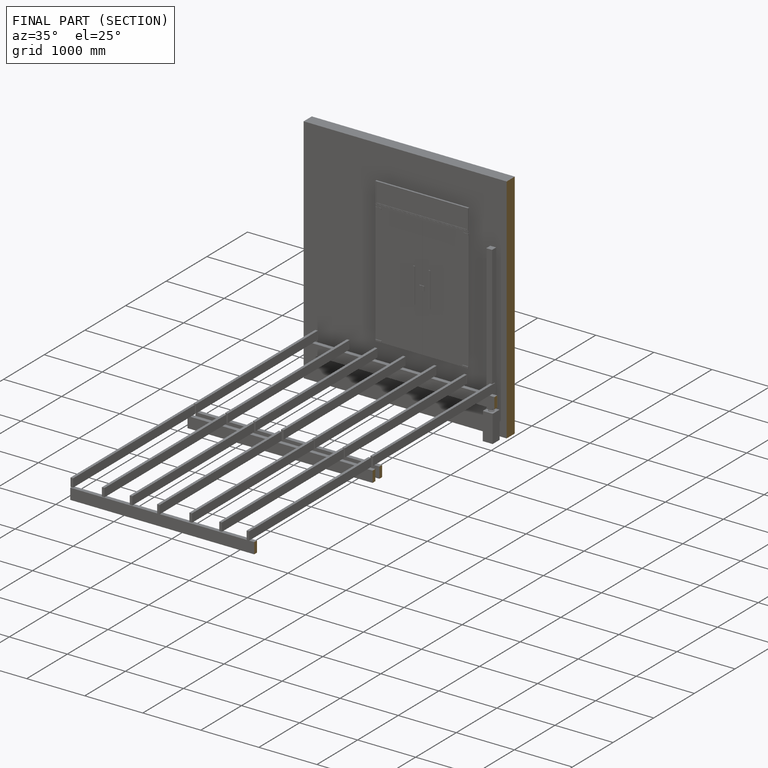
[diagram: finished part — half-section view (interior)]
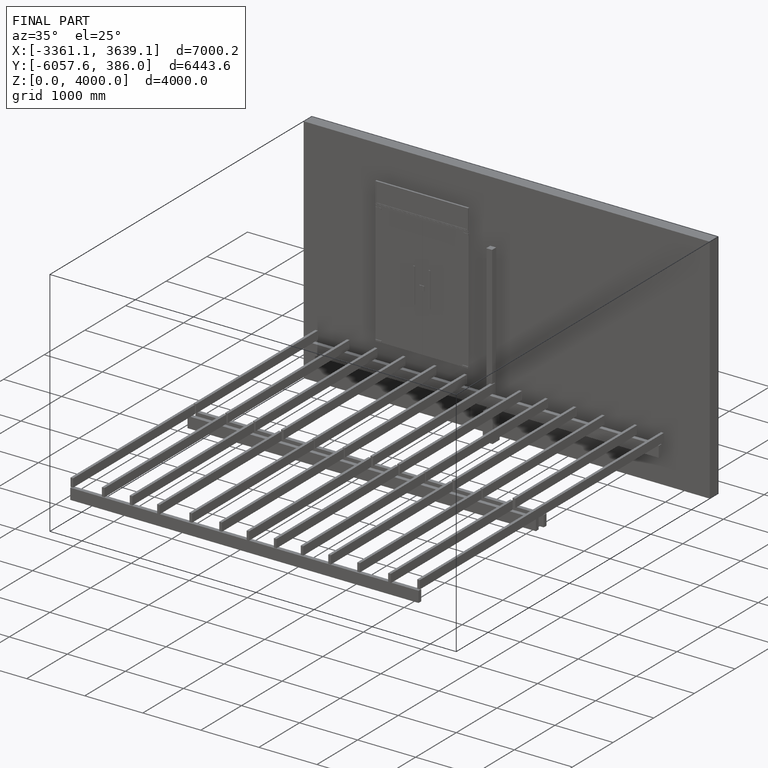
[diagram: finished part — iso view with bounding-box wireframe]
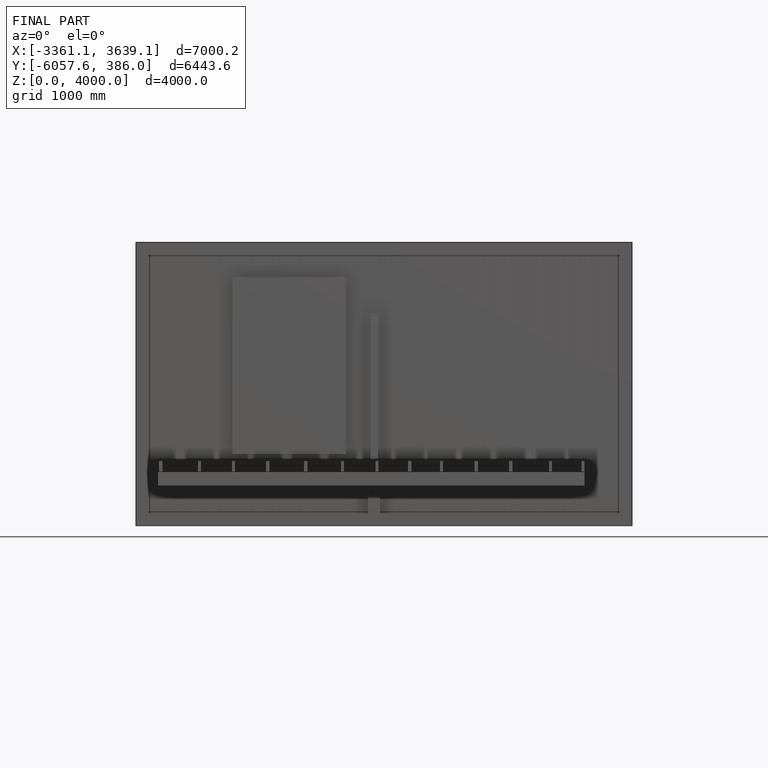
[diagram: finished part — front view with bounding-box wireframe]
